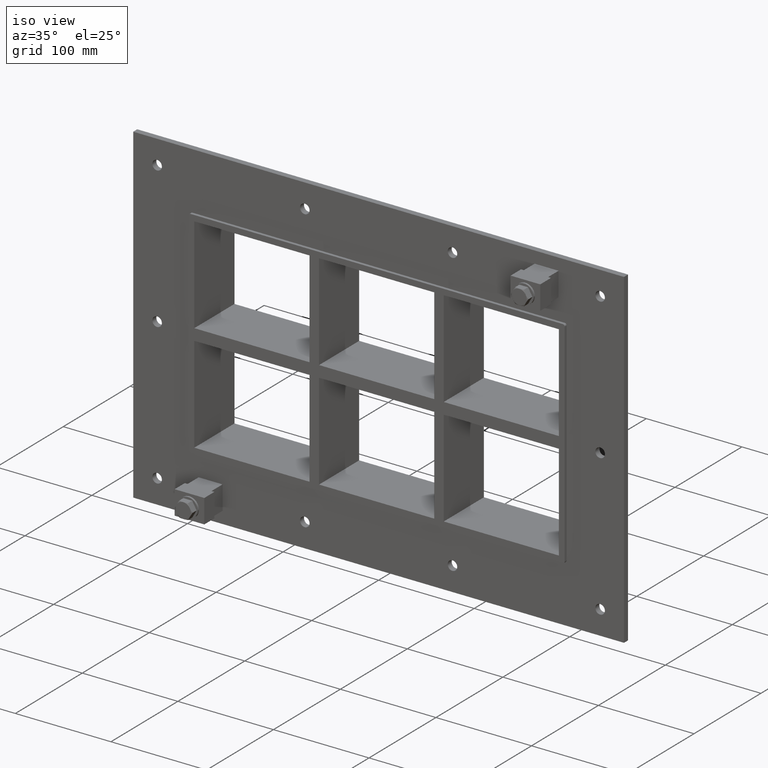
[diagram: clean part render]
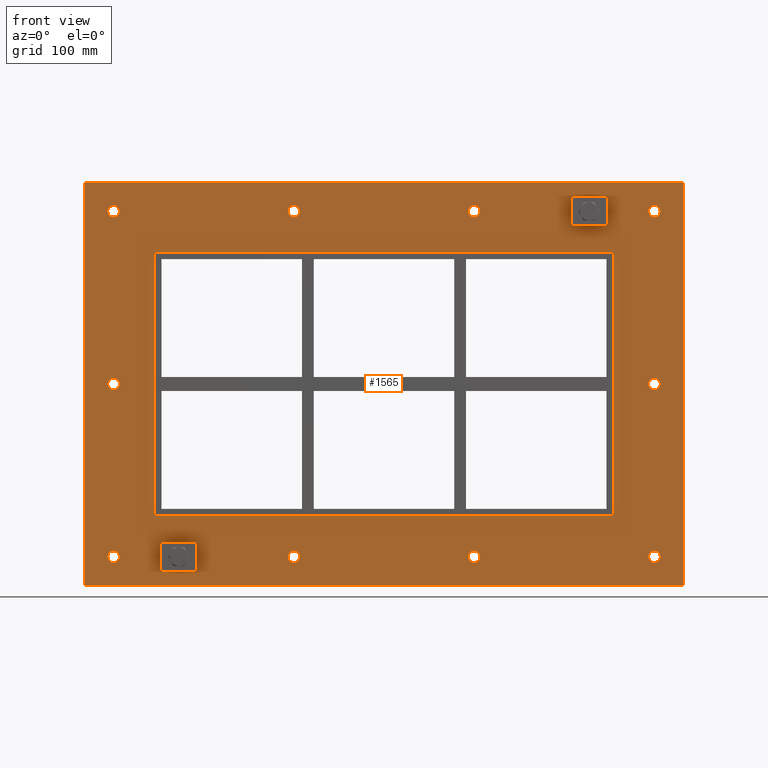
[diagram: tour spotlight — one face highlighted and labeled with its STEP entity id]
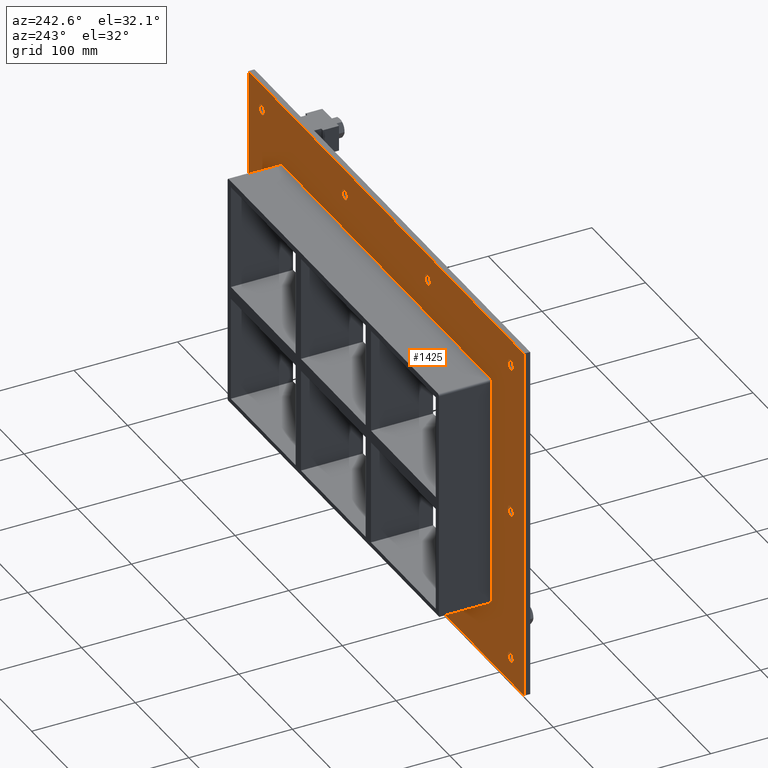
[diagram: tour spotlight — one face highlighted and labeled with its STEP entity id]
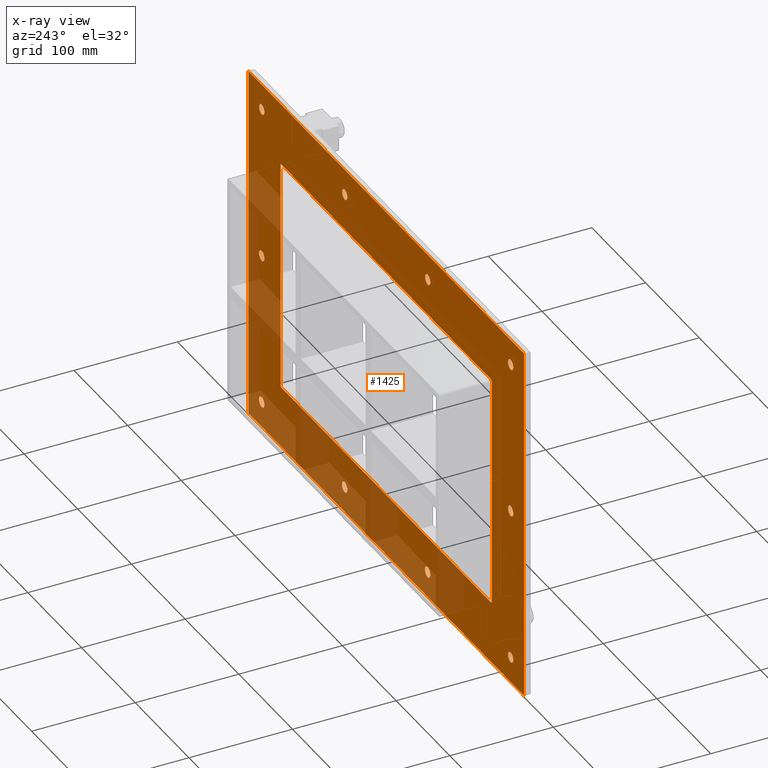
[diagram: x-ray of the same camera — body ghosted, this tour face saturated]
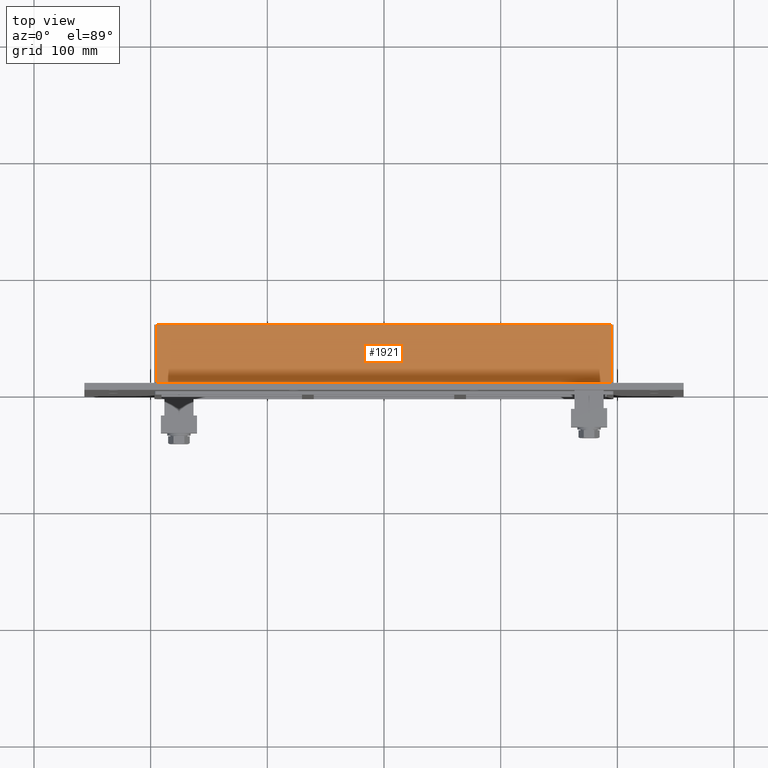
[diagram: tour spotlight — one face highlighted and labeled with its STEP entity id]
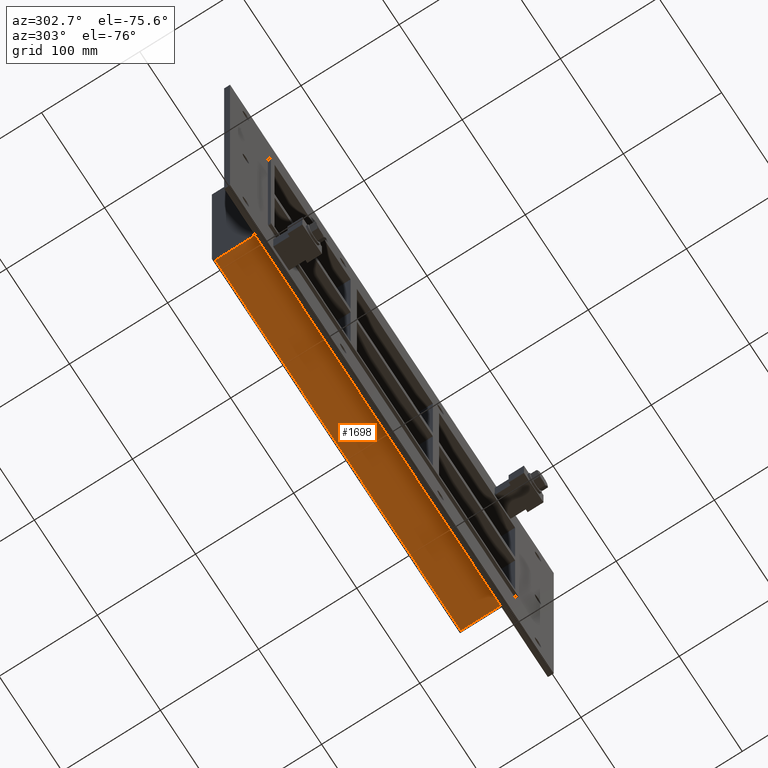
[diagram: tour spotlight — one face highlighted and labeled with its STEP entity id]
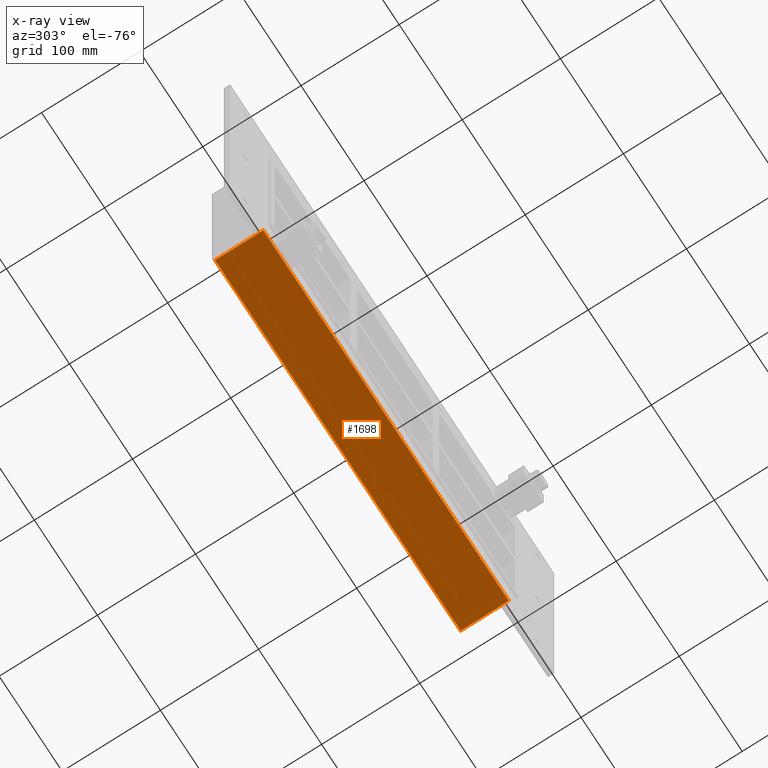
[diagram: x-ray of the same camera — body ghosted, this tour face saturated]
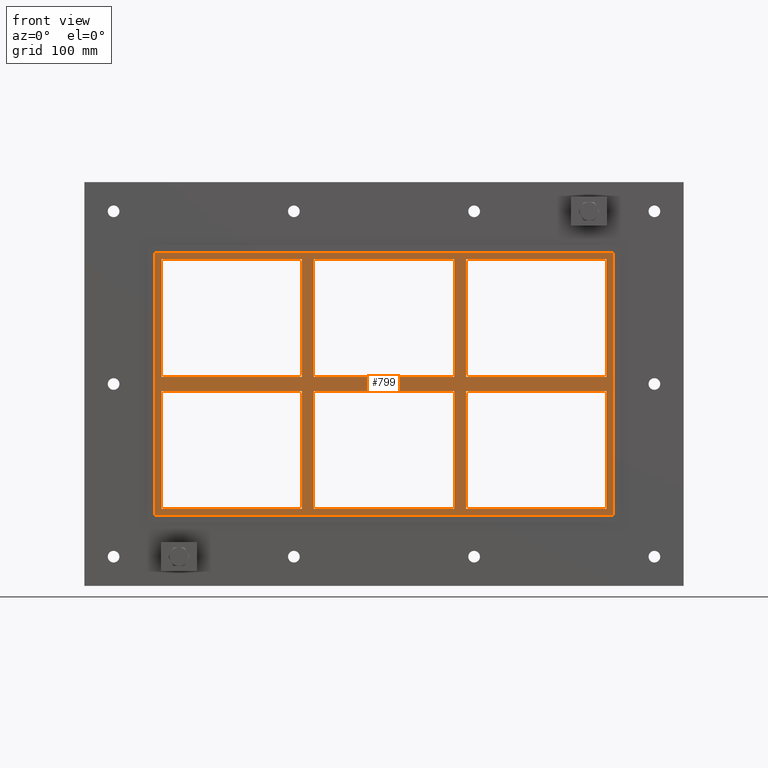
[diagram: tour spotlight — one face highlighted and labeled with its STEP entity id]
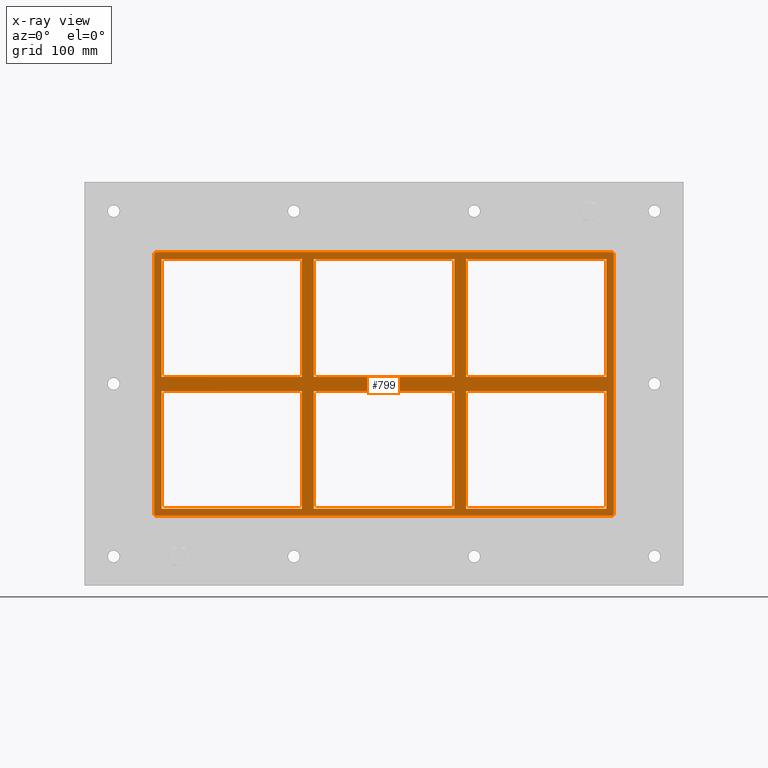
[diagram: x-ray of the same camera — body ghosted, this tour face saturated]
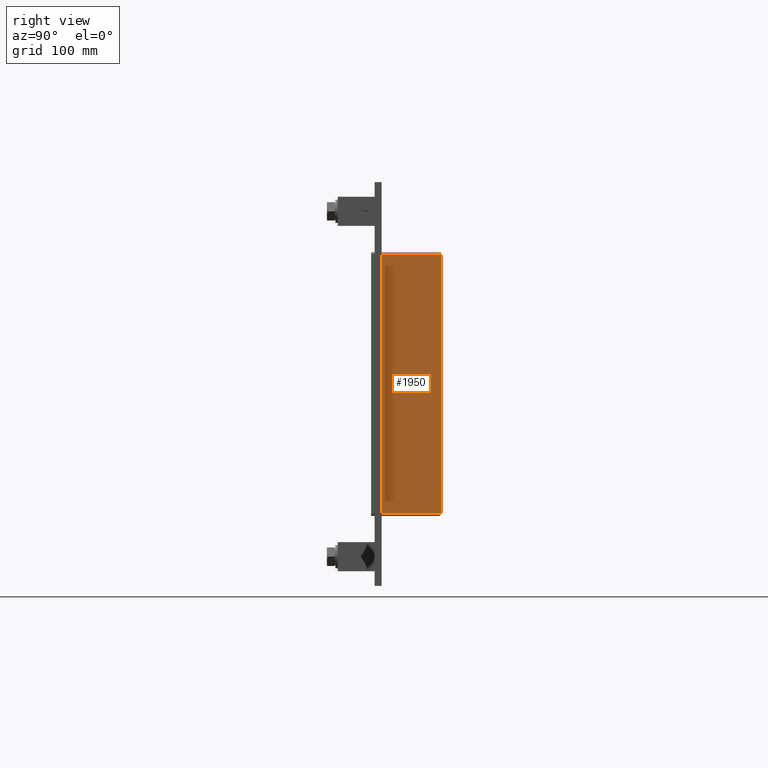
[diagram: tour spotlight — one face highlighted and labeled with its STEP entity id]
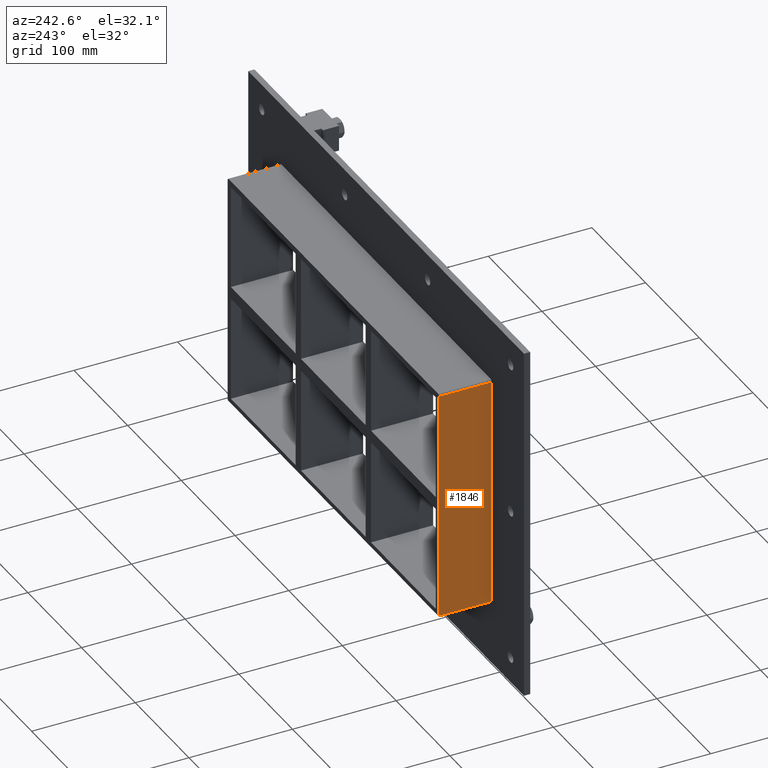
[diagram: tour spotlight — one face highlighted and labeled with its STEP entity id]
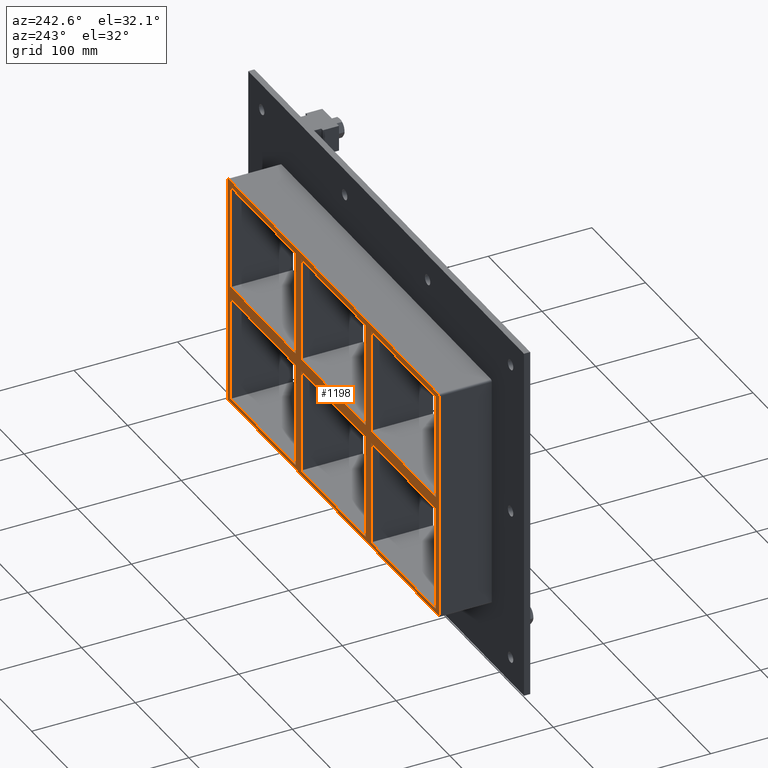
[diagram: tour spotlight — one face highlighted and labeled with its STEP entity id]
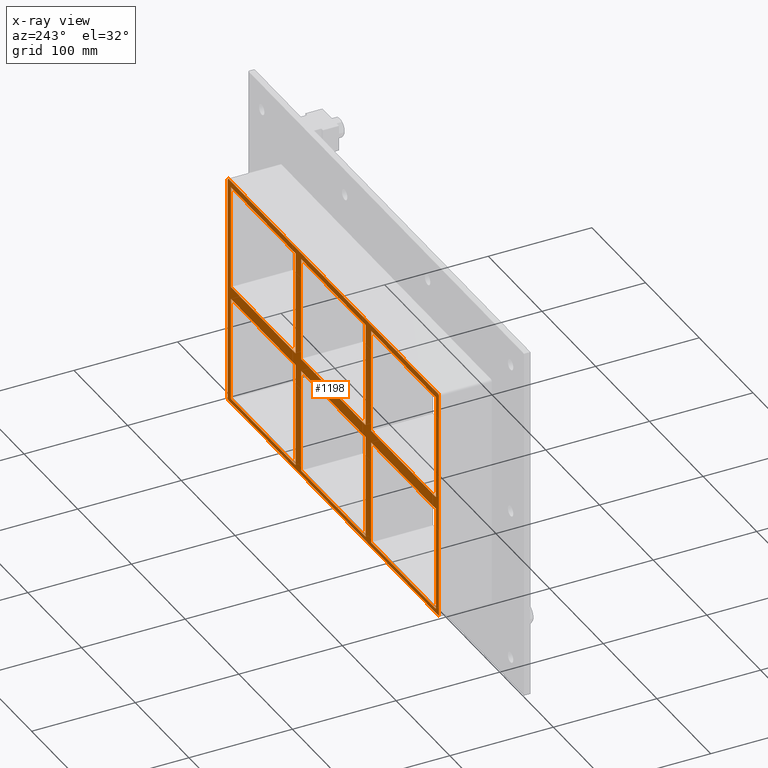
[diagram: x-ray of the same camera — body ghosted, this tour face saturated]
A machine part: a face-by-face anatomy tour. The part has 137 B-rep faces; the first image is the clean iso view, then the 8 largest visible faces are spotlighted one at a time (largest first), each with its STEP entity span.

Face 1 — front view, entity #1565. In plain terms, the highlighted planar face has unit normal (0, 1, 0).
Definition (entity closure, byte-faithful):
#84=CARTESIAN_POINT('',(-226.75000000000014,0.0,-148.00000000000006));
#85=VERTEX_POINT('',#84);
#86=CARTESIAN_POINT('',(-231.75000000000014,0.0,-148.00000000000006));
#87=DIRECTION('',(0.0,1.0,0.0));
#88=DIRECTION('',(1.0,0.0,0.0));
#89=AXIS2_PLACEMENT_3D('',#86,#87,#88);
#90=CIRCLE('',#89,5.0);
#91=EDGE_CURVE('',#85,#85,#90,.T.);
#112=CARTESIAN_POINT('',(236.74999999999986,0.0,-3.552714E-014));
#113=VERTEX_POINT('',#112);
#114=CARTESIAN_POINT('',(231.74999999999986,0.0,-3.552714E-014));
#115=DIRECTION('',(0.0,1.0,0.0));
#116=DIRECTION('',(1.0,0.0,0.0));
#117=AXIS2_PLACEMENT_3D('',#114,#115,#116);
#118=CIRCLE('',#117,5.0);
#119=EDGE_CURVE('',#113,#113,#118,.T.);
#140=CARTESIAN_POINT('',(-226.75000000000014,0.0,-3.552714E-014));
#141=VERTEX_POINT('',#140);
#142=CARTESIAN_POINT('',(-231.75000000000014,0.0,-3.552714E-014));
#143=DIRECTION('',(0.0,1.0,0.0));
#144=DIRECTION('',(1.0,0.0,0.0));
#145=AXIS2_PLACEMENT_3D('',#142,#143,#144);
#146=CIRCLE('',#145,5.0);
#147=EDGE_CURVE('',#141,#141,#146,.T.);
#168=CARTESIAN_POINT('',(-72.250000000000114,0.0,147.99999999999997));
#169=VERTEX_POINT('',#168);
#170=CARTESIAN_POINT('',(-77.250000000000114,0.0,147.99999999999997));
#171=DIRECTION('',(0.0,1.0,0.0));
#172=DIRECTION('',(1.0,0.0,0.0));
#173=AXIS2_PLACEMENT_3D('',#170,#171,#172);
#174=CIRCLE('',#173,5.0);
#175=EDGE_CURVE('',#169,#169,#174,.T.);
#196=CARTESIAN_POINT('',(-72.250000000000114,0.0,-148.00000000000006));
#197=VERTEX_POINT('',#196);
#198=CARTESIAN_POINT('',(-77.250000000000114,0.0,-148.00000000000006));
#199=DIRECTION('',(0.0,1.0,0.0));
#200=DIRECTION('',(1.0,0.0,0.0));
#201=AXIS2_PLACEMENT_3D('',#198,#199,#200);
#202=CIRCLE('',#201,5.0);
#203=EDGE_CURVE('',#197,#197,#202,.T.);
#224=CARTESIAN_POINT('',(82.249999999999872,0.0,147.99999999999997));
#225=VERTEX_POINT('',#224);
#226=CARTESIAN_POINT('',(77.249999999999872,0.0,147.99999999999997));
#227=DIRECTION('',(0.0,1.0,0.0));
#228=DIRECTION('',(1.0,0.0,0.0));
#229=AXIS2_PLACEMENT_3D('',#226,#227,#228);
#230=CIRCLE('',#229,5.0);
#231=EDGE_CURVE('',#225,#225,#230,.T.);
#252=CARTESIAN_POINT('',(82.249999999999872,0.0,-148.00000000000006));
#253=VERTEX_POINT('',#252);
#254=CARTESIAN_POINT('',(77.249999999999872,0.0,-148.00000000000006));
#255=DIRECTION('',(0.0,1.0,0.0));
#256=DIRECTION('',(1.0,0.0,0.0));
#257=AXIS2_PLACEMENT_3D('',#254,#255,#256);
#258=CIRCLE('',#257,5.0);
#259=EDGE_CURVE('',#253,#253,#258,.T.);
#280=CARTESIAN_POINT('',(236.74999999999986,0.0,-148.00000000000006));
#281=VERTEX_POINT('',#280);
#282=CARTESIAN_POINT('',(231.74999999999986,0.0,-148.00000000000006));
#283=DIRECTION('',(0.0,1.0,0.0));
#284=DIRECTION('',(1.0,0.0,0.0));
#285=AXIS2_PLACEMENT_3D('',#282,#283,#284);
#286=CIRCLE('',#285,5.0);
#287=EDGE_CURVE('',#281,#281,#286,.T.);
#308=CARTESIAN_POINT('',(-226.75000000000014,0.0,147.99999999999997));
#309=VERTEX_POINT('',#308);
#310=CARTESIAN_POINT('',(-231.75000000000014,0.0,147.99999999999997));
#311=DIRECTION('',(0.0,1.0,0.0));
#312=DIRECTION('',(1.0,0.0,0.0));
#313=AXIS2_PLACEMENT_3D('',#310,#311,#312);
#314=CIRCLE('',#313,5.0);
#315=EDGE_CURVE('',#309,#309,#314,.T.);
#336=CARTESIAN_POINT('',(236.74999999999986,0.0,147.99999999999997));
#337=VERTEX_POINT('',#336);
#338=CARTESIAN_POINT('',(231.74999999999986,0.0,147.99999999999997));
#339=DIRECTION('',(0.0,1.0,0.0));
#340=DIRECTION('',(1.0,0.0,0.0));
#341=AXIS2_PLACEMENT_3D('',#338,#339,#340);
#342=CIRCLE('',#341,5.0);
#343=EDGE_CURVE('',#337,#337,#342,.T.);
#1426=CARTESIAN_POINT('',(0.0,0.0,0.0));
#1427=DIRECTION('',(0.0,1.0,0.0));
#1428=DIRECTION('',(0.0,0.0,1.0));
#1429=AXIS2_PLACEMENT_3D('',#1426,#1427,#1428);
#1430=PLANE('',#1429);
#1431=CARTESIAN_POINT('',(-256.75,0.0,173.00000000000006));
#1432=VERTEX_POINT('',#1431);
#1433=CARTESIAN_POINT('',(256.75,0.0,173.00000000000006));
#1434=VERTEX_POINT('',#1433);
#1435=CARTESIAN_POINT('',(-256.75,0.0,173.00000000000006));
#1436=DIRECTION('',(1.0,0.0,0.0));
#1437=VECTOR('',#1436,513.5);
#1438=LINE('',#1435,#1437);
#1439=EDGE_CURVE('',#1432,#1434,#1438,.T.);
#1440=ORIENTED_EDGE('',*,*,#1439,.F.);
#1441=CARTESIAN_POINT('',(-256.75,0.0,-173.00000000000006));
#1442=VERTEX_POINT('',#1441);
#1443=CARTESIAN_POINT('',(-256.75,0.0,-173.00000000000006));
#1444=DIRECTION('',(0.0,0.0,1.0));
#1445=VECTOR('',#1444,346.00000000000011);
#1446=LINE('',#1443,#1445);
#1447=EDGE_CURVE('',#1442,#1432,#1446,.T.);
#1448=ORIENTED_EDGE('',*,*,#1447,.F.);
#1449=CARTESIAN_POINT('',(256.75,0.0,-173.00000000000006));
#1450=VERTEX_POINT('',#1449);
#1451=CARTESIAN_POINT('',(256.75,0.0,-173.00000000000006));
#1452=DIRECTION('',(-1.0,0.0,0.0));
#1453=VECTOR('',#1452,513.5);
#1454=LINE('',#1451,#1453);
#1455=EDGE_CURVE('',#1450,#1442,#1454,.T.);
#1456=ORIENTED_EDGE('',*,*,#1455,.F.);
#1457=CARTESIAN_POINT('',(256.75,0.0,173.00000000000006));
#1458=DIRECTION('',(0.0,0.0,-1.0));
#1459=VECTOR('',#1458,346.00000000000011);
#1460=LINE('',#1457,#1459);
#1461=EDGE_CURVE('',#1434,#1450,#1460,.T.);
#1462=ORIENTED_EDGE('',*,*,#1461,.F.);
#1463=EDGE_LOOP('',(#1440,#1448,#1456,#1462));
#1464=FACE_OUTER_BOUND('',#1463,.T.);
#1465=ORIENTED_EDGE('',*,*,#91,.T.);
#1466=EDGE_LOOP('',(#1465));
#1467=FACE_BOUND('',#1466,.T.);
#1468=ORIENTED_EDGE('',*,*,#119,.T.);
#1469=EDGE_LOOP('',(#1468));
#1470=FACE_BOUND('',#1469,.T.);
#1471=ORIENTED_EDGE('',*,*,#147,.T.);
#1472=EDGE_LOOP('',(#1471));
#1473=FACE_BOUND('',#1472,.T.);
#1474=ORIENTED_EDGE('',*,*,#175,.T.);
#1475=EDGE_LOOP('',(#1474));
#1476=FACE_BOUND('',#1475,.T.);
#1477=ORIENTED_EDGE('',*,*,#203,.T.);
#1478=EDGE_LOOP('',(#1477));
#1479=FACE_BOUND('',#1478,.T.);
#1480=ORIENTED_EDGE('',*,*,#231,.T.);
#1481=EDGE_LOOP('',(#1480));
#1482=FACE_BOUND('',#1481,.T.);
#1483=ORIENTED_EDGE('',*,*,#259,.T.);
#1484=EDGE_LOOP('',(#1483));
#1485=FACE_BOUND('',#1484,.T.);
#1486=ORIENTED_EDGE('',*,*,#287,.T.);
#1487=EDGE_LOOP('',(#1486));
#1488=FACE_BOUND('',#1487,.T.);
#1489=ORIENTED_EDGE('',*,*,#315,.T.);
#1490=EDGE_LOOP('',(#1489));
#1491=FACE_BOUND('',#1490,.T.);
#1492=ORIENTED_EDGE('',*,*,#343,.T.);
#1493=EDGE_LOOP('',(#1492));
#1494=FACE_BOUND('',#1493,.T.);
#1495=CARTESIAN_POINT('',(-194.75,0.0,112.99999999999997));
#1496=VERTEX_POINT('',#1495);
#1497=CARTESIAN_POINT('',(-196.75000000000006,0.0,110.99999999999997));
#1498=VERTEX_POINT('',#1497);
#1499=CARTESIAN_POINT('',(-194.75,0.0,110.99999999999997));
#1500=DIRECTION('',(0.0,-1.0,0.0));
#1501=DIRECTION('',(-0.707106781186554,0.0,0.707106781186541));
#1502=AXIS2_PLACEMENT_3D('',#1499,#1500,#1501);
#1503=CIRCLE('',#1502,2.0);
#1504=EDGE_CURVE('',#1496,#1498,#1503,.T.);
#1505=ORIENTED_EDGE('',*,*,#1504,.F.);
#1506=CARTESIAN_POINT('',(194.75,0.0,112.99999999999997));
#1507=VERTEX_POINT('',#1506);
#1508=CARTESIAN_POINT('',(194.75000000000003,0.0,112.99999999999997));
#1509=DIRECTION('',(-1.0,0.0,0.0));
#1510=VECTOR('',#1509,389.50000000000006);
#1511=LINE('',#1508,#1510);
#1512=EDGE_CURVE('',#1507,#1496,#1511,.T.);
#1513=ORIENTED_EDGE('',*,*,#1512,.F.);
#1514=CARTESIAN_POINT('',(196.75000000000006,0.0,110.99999999999997));
#1515=VERTEX_POINT('',#1514);
#1516=CARTESIAN_POINT('',(194.75,0.0,110.99999999999997));
#1517=DIRECTION('',(0.0,-1.0,0.0));
#1518=DIRECTION('',(0.707106781186554,0.0,0.707106781186541));
#1519=AXIS2_PLACEMENT_3D('',#1516,#1517,#1518);
#1520=CIRCLE('',#1519,2.0);
#1521=EDGE_CURVE('',#1515,#1507,#1520,.T.);
#1522=ORIENTED_EDGE('',*,*,#1521,.F.);
#1523=CARTESIAN_POINT('',(196.75000000000006,0.0,-111.00000000000006));
#1524=VERTEX_POINT('',#1523);
#1525=CARTESIAN_POINT('',(196.75000000000006,0.0,-111.00000000000004));
#1526=DIRECTION('',(0.0,0.0,1.0));
#1527=VECTOR('',#1526,222.0);
#1528=LINE('',#1525,#1527);
#1529=EDGE_CURVE('',#1524,#1515,#1528,.T.);
#1530=ORIENTED_EDGE('',*,*,#1529,.F.);
#1531=CARTESIAN_POINT('',(194.75,0.0,-113.00000000000004));
#1532=VERTEX_POINT('',#1531);
#1533=CARTESIAN_POINT('',(194.75,0.0,-111.00000000000006));
#1534=DIRECTION('',(0.0,-1.0,0.0));
#1535=DIRECTION('',(0.707106781186554,0.0,-0.707106781186541));
#1536=AXIS2_PLACEMENT_3D('',#1533,#1534,#1535);
#1537=CIRCLE('',#1536,2.0);
#1538=EDGE_CURVE('',#1532,#1524,#1537,.T.);
#1539=ORIENTED_EDGE('',*,*,#1538,.F.);
#1540=CARTESIAN_POINT('',(-194.75,0.0,-113.00000000000004));
#1541=VERTEX_POINT('',#1540);
#1542=CARTESIAN_POINT('',(-194.75000000000003,0.0,-113.00000000000004));
#1543=DIRECTION('',(1.0,0.0,0.0));
#1544=VECTOR('',#1543,389.50000000000006);
#1545=LINE('',#1542,#1544);
#1546=EDGE_CURVE('',#1541,#1532,#1545,.T.);
#1547=ORIENTED_EDGE('',*,*,#1546,.F.);
#1548=CARTESIAN_POINT('',(-196.75000000000006,0.0,-111.00000000000006));
#1549=VERTEX_POINT('',#1548);
#1550=CARTESIAN_POINT('',(-194.75,0.0,-111.00000000000006));
#1551=DIRECTION('',(0.0,-1.0,0.0));
#1552=DIRECTION('',(-0.707106781186554,0.0,-0.707106781186541));
#1553=AXIS2_PLACEMENT_3D('',#1550,#1551,#1552);
#1554=CIRCLE('',#1553,2.0);
#1555=EDGE_CURVE('',#1549,#1541,#1554,.T.);
#1556=ORIENTED_EDGE('',*,*,#1555,.F.);
#1557=CARTESIAN_POINT('',(-196.75000000000006,0.0,110.99999999999997));
#1558=DIRECTION('',(0.0,0.0,-1.0));
#1559=VECTOR('',#1558,222.00000000000003);
#1560=LINE('',#1557,#1559);
#1561=EDGE_CURVE('',#1498,#1549,#1560,.T.);
#1562=ORIENTED_EDGE('',*,*,#1561,.F.);
#1563=EDGE_LOOP('',(#1505,#1513,#1522,#1530,#1539,#1547,#1556,#1562));
#1564=FACE_BOUND('',#1563,.T.);
#1565=ADVANCED_FACE('',(#1464,#1467,#1470,#1473,#1476,#1479,#1482,#1485,#1488,#1491,#1494,#1564),#1430,.F.);

Face 2 — auxiliary view, entity #1425. An x-ray twin of the same camera follows (body ghosted, this face saturated) — the face is partly hidden behind the body. In plain terms, the highlighted planar face has unit normal (0, 1, 0).
Definition (entity closure, byte-faithful):
#73=CARTESIAN_POINT('',(-236.75000000000014,6.000000000000014,-148.00000000000006));
#74=VERTEX_POINT('',#73);
#75=CARTESIAN_POINT('',(-231.75000000000014,6.000000000000014,-148.00000000000006));
#76=DIRECTION('',(0.0,-1.0,0.0));
#77=DIRECTION('',(1.0,0.0,0.0));
#78=AXIS2_PLACEMENT_3D('',#75,#76,#77);
#79=CIRCLE('',#78,5.0);
#80=EDGE_CURVE('',#74,#74,#79,.T.);
#101=CARTESIAN_POINT('',(226.74999999999986,6.000000000000014,-3.552714E-014));
#102=VERTEX_POINT('',#101);
#103=CARTESIAN_POINT('',(231.74999999999986,6.000000000000014,-3.552714E-014));
#104=DIRECTION('',(0.0,-1.0,0.0));
#105=DIRECTION('',(1.0,0.0,0.0));
#106=AXIS2_PLACEMENT_3D('',#103,#104,#105);
#107=CIRCLE('',#106,5.0);
#108=EDGE_CURVE('',#102,#102,#107,.T.);
#129=CARTESIAN_POINT('',(-236.75000000000014,6.000000000000014,-3.552714E-014));
#130=VERTEX_POINT('',#129);
#131=CARTESIAN_POINT('',(-231.75000000000014,6.000000000000014,-3.552714E-014));
#132=DIRECTION('',(0.0,-1.0,0.0));
#133=DIRECTION('',(1.0,0.0,0.0));
#134=AXIS2_PLACEMENT_3D('',#131,#132,#133);
#135=CIRCLE('',#134,5.0);
#136=EDGE_CURVE('',#130,#130,#135,.T.);
#157=CARTESIAN_POINT('',(-82.250000000000114,6.000000000000014,147.99999999999997));
#158=VERTEX_POINT('',#157);
#159=CARTESIAN_POINT('',(-77.250000000000114,6.000000000000014,147.99999999999997));
#160=DIRECTION('',(0.0,-1.0,0.0));
#161=DIRECTION('',(1.0,0.0,0.0));
#162=AXIS2_PLACEMENT_3D('',#159,#160,#161);
#163=CIRCLE('',#162,5.0);
#164=EDGE_CURVE('',#158,#158,#163,.T.);
#185=CARTESIAN_POINT('',(-82.250000000000114,6.000000000000014,-148.00000000000006));
#186=VERTEX_POINT('',#185);
#187=CARTESIAN_POINT('',(-77.250000000000114,6.000000000000014,-148.00000000000006));
#188=DIRECTION('',(0.0,-1.0,0.0));
#189=DIRECTION('',(1.0,0.0,0.0));
#190=AXIS2_PLACEMENT_3D('',#187,#188,#189);
#191=CIRCLE('',#190,5.0);
#192=EDGE_CURVE('',#186,#186,#191,.T.);
#213=CARTESIAN_POINT('',(72.249999999999872,6.000000000000014,147.99999999999997));
#214=VERTEX_POINT('',#213);
#215=CARTESIAN_POINT('',(77.249999999999872,6.000000000000014,147.99999999999997));
#216=DIRECTION('',(0.0,-1.0,0.0));
#217=DIRECTION('',(1.0,0.0,0.0));
#218=AXIS2_PLACEMENT_3D('',#215,#216,#217);
#219=CIRCLE('',#218,5.0);
#220=EDGE_CURVE('',#214,#214,#219,.T.);
#241=CARTESIAN_POINT('',(72.249999999999872,6.000000000000014,-148.00000000000006));
#242=VERTEX_POINT('',#241);
#243=CARTESIAN_POINT('',(77.249999999999872,6.000000000000014,-148.00000000000006));
#244=DIRECTION('',(0.0,-1.0,0.0));
#245=DIRECTION('',(1.0,0.0,0.0));
#246=AXIS2_PLACEMENT_3D('',#243,#244,#245);
#247=CIRCLE('',#246,5.0);
#248=EDGE_CURVE('',#242,#242,#247,.T.);
#269=CARTESIAN_POINT('',(226.74999999999986,6.000000000000014,-148.00000000000006));
#270=VERTEX_POINT('',#269);
#271=CARTESIAN_POINT('',(231.74999999999986,6.000000000000014,-148.00000000000006));
#272=DIRECTION('',(0.0,-1.0,0.0));
#273=DIRECTION('',(1.0,0.0,0.0));
#274=AXIS2_PLACEMENT_3D('',#271,#272,#273);
#275=CIRCLE('',#274,5.0);
#276=EDGE_CURVE('',#270,#270,#275,.T.);
#297=CARTESIAN_POINT('',(-236.75000000000014,6.000000000000014,147.99999999999997));
#298=VERTEX_POINT('',#297);
#299=CARTESIAN_POINT('',(-231.75000000000014,6.000000000000014,147.99999999999997));
#300=DIRECTION('',(0.0,-1.0,0.0));
#301=DIRECTION('',(1.0,0.0,0.0));
#302=AXIS2_PLACEMENT_3D('',#299,#300,#301);
#303=CIRCLE('',#302,5.0);
#304=EDGE_CURVE('',#298,#298,#303,.T.);
#325=CARTESIAN_POINT('',(226.74999999999986,6.000000000000014,147.99999999999997));
#326=VERTEX_POINT('',#325);
#327=CARTESIAN_POINT('',(231.74999999999986,6.000000000000014,147.99999999999997));
#328=DIRECTION('',(0.0,-1.0,0.0));
#329=DIRECTION('',(1.0,0.0,0.0));
#330=AXIS2_PLACEMENT_3D('',#327,#328,#329);
#331=CIRCLE('',#330,5.0);
#332=EDGE_CURVE('',#326,#326,#331,.T.);
#1286=CARTESIAN_POINT('',(0.0,6.000000000000001,0.0));
#1287=DIRECTION('',(0.0,1.0,0.0));
#1288=DIRECTION('',(0.0,0.0,1.0));
#1289=AXIS2_PLACEMENT_3D('',#1286,#1287,#1288);
#1290=PLANE('',#1289);
#1291=CARTESIAN_POINT('',(-256.75,6.000000000000001,173.00000000000006));
#1292=VERTEX_POINT('',#1291);
#1293=CARTESIAN_POINT('',(256.75,6.000000000000001,173.00000000000006));
#1294=VERTEX_POINT('',#1293);
#1295=CARTESIAN_POINT('',(-256.75,6.000000000000001,173.00000000000006));
#1296=DIRECTION('',(1.0,0.0,0.0));
#1297=VECTOR('',#1296,513.5);
#1298=LINE('',#1295,#1297);
#1299=EDGE_CURVE('',#1292,#1294,#1298,.T.);
#1300=ORIENTED_EDGE('',*,*,#1299,.T.);
#1301=CARTESIAN_POINT('',(256.75,6.000000000000001,-173.00000000000006));
#1302=VERTEX_POINT('',#1301);
#1303=CARTESIAN_POINT('',(256.75,6.000000000000001,173.00000000000006));
#1304=DIRECTION('',(0.0,0.0,-1.0));
#1305=VECTOR('',#1304,346.00000000000011);
#1306=LINE('',#1303,#1305);
#1307=EDGE_CURVE('',#1294,#1302,#1306,.T.);
#1308=ORIENTED_EDGE('',*,*,#1307,.T.);
#1309=CARTESIAN_POINT('',(-256.75,6.000000000000001,-173.00000000000006));
#1310=VERTEX_POINT('',#1309);
#1311=CARTESIAN_POINT('',(256.75,6.000000000000001,-173.00000000000006));
#1312=DIRECTION('',(-1.0,0.0,0.0));
#1313=VECTOR('',#1312,513.5);
#1314=LINE('',#1311,#1313);
#1315=EDGE_CURVE('',#1302,#1310,#1314,.T.);
#1316=ORIENTED_EDGE('',*,*,#1315,.T.);
#1317=CARTESIAN_POINT('',(-256.75,6.000000000000001,-173.00000000000006));
#1318=DIRECTION('',(0.0,0.0,1.0));
#1319=VECTOR('',#1318,346.00000000000011);
#1320=LINE('',#1317,#1319);
#1321=EDGE_CURVE('',#1310,#1292,#1320,.T.);
#1322=ORIENTED_EDGE('',*,*,#1321,.T.);
#1323=EDGE_LOOP('',(#1300,#1308,#1316,#1322));
#1324=FACE_OUTER_BOUND('',#1323,.T.);
#1325=ORIENTED_EDGE('',*,*,#80,.T.);
#1326=EDGE_LOOP('',(#1325));
#1327=FACE_BOUND('',#1326,.T.);
#1328=ORIENTED_EDGE('',*,*,#108,.T.);
#1329=EDGE_LOOP('',(#1328));
#1330=FACE_BOUND('',#1329,.T.);
#1331=ORIENTED_EDGE('',*,*,#136,.T.);
#1332=EDGE_LOOP('',(#1331));
#1333=FACE_BOUND('',#1332,.T.);
#1334=ORIENTED_EDGE('',*,*,#164,.T.);
#1335=EDGE_LOOP('',(#1334));
#1336=FACE_BOUND('',#1335,.T.);
#1337=ORIENTED_EDGE('',*,*,#192,.T.);
#1338=EDGE_LOOP('',(#1337));
#1339=FACE_BOUND('',#1338,.T.);
#1340=ORIENTED_EDGE('',*,*,#220,.T.);
#1341=EDGE_LOOP('',(#1340));
#1342=FACE_BOUND('',#1341,.T.);
#1343=ORIENTED_EDGE('',*,*,#248,.T.);
#1344=EDGE_LOOP('',(#1343));
#1345=FACE_BOUND('',#1344,.T.);
#1346=ORIENTED_EDGE('',*,*,#276,.T.);
#1347=EDGE_LOOP('',(#1346));
#1348=FACE_BOUND('',#1347,.T.);
#1349=ORIENTED_EDGE('',*,*,#304,.T.);
#1350=EDGE_LOOP('',(#1349));
#1351=FACE_BOUND('',#1350,.T.);
#1352=ORIENTED_EDGE('',*,*,#332,.T.);
#1353=EDGE_LOOP('',(#1352));
#1354=FACE_BOUND('',#1353,.T.);
#1355=CARTESIAN_POINT('',(-196.75000000000006,6.000000000000001,110.99999999999997));
#1356=VERTEX_POINT('',#1355);
#1357=CARTESIAN_POINT('',(-194.75,6.000000000000001,112.99999999999997));
#1358=VERTEX_POINT('',#1357);
#1359=CARTESIAN_POINT('',(-194.75,6.000000000000001,110.99999999999997));
#1360=DIRECTION('',(0.0,1.0,0.0));
#1361=DIRECTION('',(-0.707106781186554,0.0,0.707106781186541));
#1362=AXIS2_PLACEMENT_3D('',#1359,#1360,#1361);
#1363=CIRCLE('',#1362,2.0);
#1364=EDGE_CURVE('',#1356,#1358,#1363,.T.);
#1365=ORIENTED_EDGE('',*,*,#1364,.F.);
#1366=CARTESIAN_POINT('',(-196.75000000000006,6.000000000000001,-111.00000000000006));
#1367=VERTEX_POINT('',#1366);
#1368=CARTESIAN_POINT('',(-196.75000000000006,6.000000000000001,-111.00000000000006));
#1369=DIRECTION('',(0.0,0.0,1.0));
#1370=VECTOR('',#1369,222.00000000000003);
#1371=LINE('',#1368,#1370);
#1372=EDGE_CURVE('',#1367,#1356,#1371,.T.);
#1373=ORIENTED_EDGE('',*,*,#1372,.F.);
#1374=CARTESIAN_POINT('',(-194.75,6.000000000000001,-113.00000000000004));
#1375=VERTEX_POINT('',#1374);
#1376=CARTESIAN_POINT('',(-194.75,6.000000000000001,-111.00000000000006));
#1377=DIRECTION('',(0.0,1.0,0.0));
#1378=DIRECTION('',(-0.707106781186554,0.0,-0.707106781186541));
#1379=AXIS2_PLACEMENT_3D('',#1376,#1377,#1378);
#1380=CIRCLE('',#1379,2.0);
#1381=EDGE_CURVE('',#1375,#1367,#1380,.T.);
#1382=ORIENTED_EDGE('',*,*,#1381,.F.);
#1383=CARTESIAN_POINT('',(194.75,6.000000000000001,-113.00000000000004));
#1384=VERTEX_POINT('',#1383);
#1385=CARTESIAN_POINT('',(194.75000000000003,6.000000000000001,-113.00000000000004));
#1386=DIRECTION('',(-1.0,0.0,0.0));
#1387=VECTOR('',#1386,389.50000000000006);
#1388=LINE('',#1385,#1387);
#1389=EDGE_CURVE('',#1384,#1375,#1388,.T.);
#1390=ORIENTED_EDGE('',*,*,#1389,.F.);
#1391=CARTESIAN_POINT('',(196.75000000000006,6.000000000000001,-111.00000000000006));
#1392=VERTEX_POINT('',#1391);
#1393=CARTESIAN_POINT('',(194.75,6.000000000000001,-111.00000000000006));
#1394=DIRECTION('',(0.0,1.0,0.0));
#1395=DIRECTION('',(0.707106781186554,0.0,-0.707106781186541));
#1396=AXIS2_PLACEMENT_3D('',#1393,#1394,#1395);
#1397=CIRCLE('',#1396,2.0);
#1398=EDGE_CURVE('',#1392,#1384,#1397,.T.);
#1399=ORIENTED_EDGE('',*,*,#1398,.F.);
#1400=CARTESIAN_POINT('',(196.75000000000006,6.000000000000001,110.99999999999997));
#1401=VERTEX_POINT('',#1400);
#1402=CARTESIAN_POINT('',(196.75000000000006,6.000000000000001,110.99999999999997));
#1403=DIRECTION('',(0.0,0.0,-1.0));
#1404=VECTOR('',#1403,222.0);
#1405=LINE('',#1402,#1404);
#1406=EDGE_CURVE('',#1401,#1392,#1405,.T.);
#1407=ORIENTED_EDGE('',*,*,#1406,.F.);
#1408=CARTESIAN_POINT('',(194.75,6.000000000000001,112.99999999999997));
#1409=VERTEX_POINT('',#1408);
#1410=CARTESIAN_POINT('',(194.75,6.000000000000001,110.99999999999997));
#1411=DIRECTION('',(0.0,1.0,0.0));
#1412=DIRECTION('',(0.707106781186554,0.0,0.707106781186541));
#1413=AXIS2_PLACEMENT_3D('',#1410,#1411,#1412);
#1414=CIRCLE('',#1413,2.0);
#1415=EDGE_CURVE('',#1409,#1401,#1414,.T.);
#1416=ORIENTED_EDGE('',*,*,#1415,.F.);
#1417=CARTESIAN_POINT('',(-194.75000000000003,6.000000000000001,112.99999999999997));
#1418=DIRECTION('',(1.0,0.0,0.0));
#1419=VECTOR('',#1418,389.50000000000006);
#1420=LINE('',#1417,#1419);
#1421=EDGE_CURVE('',#1358,#1409,#1420,.T.);
#1422=ORIENTED_EDGE('',*,*,#1421,.F.);
#1423=EDGE_LOOP('',(#1365,#1373,#1382,#1390,#1399,#1407,#1416,#1422));
#1424=FACE_BOUND('',#1423,.T.);
#1425=ADVANCED_FACE('',(#1324,#1327,#1330,#1333,#1336,#1339,#1342,#1345,#1348,#1351,#1354,#1424),#1290,.T.);

Face 3 — top view, entity #1921. In plain terms, the highlighted planar face has unit normal (0, 0, 1).
Definition (entity closure, byte-faithful):
#1087=CARTESIAN_POINT('',(-194.75,57.0,112.99999999999997));
#1088=VERTEX_POINT('',#1087);
#1096=CARTESIAN_POINT('',(194.75,57.0,112.99999999999997));
#1097=VERTEX_POINT('',#1096);
#1098=CARTESIAN_POINT('',(-194.75000000000003,57.0,112.99999999999997));
#1099=DIRECTION('',(1.0,0.0,0.0));
#1100=VECTOR('',#1099,389.5);
#1101=LINE('',#1098,#1100);
#1102=EDGE_CURVE('',#1088,#1097,#1101,.T.);
#1357=CARTESIAN_POINT('',(-194.75,6.000000000000001,112.99999999999997));
#1358=VERTEX_POINT('',#1357);
#1408=CARTESIAN_POINT('',(194.75,6.000000000000001,112.99999999999997));
#1409=VERTEX_POINT('',#1408);
#1417=CARTESIAN_POINT('',(-194.75000000000003,6.000000000000001,112.99999999999997));
#1418=DIRECTION('',(1.0,0.0,0.0));
#1419=VECTOR('',#1418,389.50000000000006);
#1420=LINE('',#1417,#1419);
#1421=EDGE_CURVE('',#1358,#1409,#1420,.T.);
#1894=CARTESIAN_POINT('',(-194.75,6.000000000000001,112.99999999999997));
#1895=DIRECTION('',(0.0,1.0,0.0));
#1896=VECTOR('',#1895,51.0);
#1897=LINE('',#1894,#1896);
#1898=EDGE_CURVE('',#1358,#1088,#1897,.T.);
#1905=CARTESIAN_POINT('',(-196.75000000000006,0.0,112.99999999999997));
#1906=DIRECTION('',(0.0,0.0,1.0));
#1907=DIRECTION('',(1.0,0.0,0.0));
#1908=AXIS2_PLACEMENT_3D('',#1905,#1906,#1907);
#1909=PLANE('',#1908);
#1910=ORIENTED_EDGE('',*,*,#1421,.T.);
#1911=CARTESIAN_POINT('',(194.75,57.0,112.99999999999997));
#1912=DIRECTION('',(0.0,-1.0,0.0));
#1913=VECTOR('',#1912,51.0);
#1914=LINE('',#1911,#1913);
#1915=EDGE_CURVE('',#1097,#1409,#1914,.T.);
#1916=ORIENTED_EDGE('',*,*,#1915,.F.);
#1917=ORIENTED_EDGE('',*,*,#1102,.F.);
#1918=ORIENTED_EDGE('',*,*,#1898,.F.);
#1919=EDGE_LOOP('',(#1910,#1916,#1917,#1918));
#1920=FACE_OUTER_BOUND('',#1919,.T.);
#1921=ADVANCED_FACE('',(#1920),#1909,.T.);

Face 4 — auxiliary view, entity #1698. An x-ray twin of the same camera follows (body ghosted, this face saturated) — the face is partly hidden behind the body. In plain terms, the highlighted planar face has unit normal (0, 0, -1).
Definition (entity closure, byte-faithful):
#1374=CARTESIAN_POINT('',(-194.75,6.000000000000001,-113.00000000000004));
#1375=VERTEX_POINT('',#1374);
#1383=CARTESIAN_POINT('',(194.75,6.000000000000001,-113.00000000000004));
#1384=VERTEX_POINT('',#1383);
#1385=CARTESIAN_POINT('',(194.75000000000003,6.000000000000001,-113.00000000000004));
#1386=DIRECTION('',(-1.0,0.0,0.0));
#1387=VECTOR('',#1386,389.50000000000006);
#1388=LINE('',#1385,#1387);
#1389=EDGE_CURVE('',#1384,#1375,#1388,.T.);
#1668=CARTESIAN_POINT('',(196.75000000000006,0.0,-113.00000000000004));
#1669=DIRECTION('',(0.0,0.0,-1.0));
#1670=DIRECTION('',(-1.0,0.0,0.0));
#1671=AXIS2_PLACEMENT_3D('',#1668,#1669,#1670);
#1672=PLANE('',#1671);
#1673=ORIENTED_EDGE('',*,*,#1389,.T.);
#1674=CARTESIAN_POINT('',(-194.75,55.0,-113.00000000000004));
#1675=VERTEX_POINT('',#1674);
#1676=CARTESIAN_POINT('',(-194.75,55.0,-113.00000000000004));
#1677=DIRECTION('',(0.0,-1.0,0.0));
#1678=VECTOR('',#1677,49.0);
#1679=LINE('',#1676,#1678);
#1680=EDGE_CURVE('',#1675,#1375,#1679,.T.);
#1681=ORIENTED_EDGE('',*,*,#1680,.F.);
#1682=CARTESIAN_POINT('',(194.75,55.0,-113.00000000000004));
#1683=VERTEX_POINT('',#1682);
#1684=CARTESIAN_POINT('',(194.75000000000003,55.0,-113.00000000000004));
#1685=DIRECTION('',(-1.0,0.0,0.0));
#1686=VECTOR('',#1685,389.50000000000006);
#1687=LINE('',#1684,#1686);
#1688=EDGE_CURVE('',#1683,#1675,#1687,.T.);
#1689=ORIENTED_EDGE('',*,*,#1688,.F.);
#1690=CARTESIAN_POINT('',(194.75,6.000000000000001,-113.00000000000004));
#1691=DIRECTION('',(0.0,1.0,0.0));
#1692=VECTOR('',#1691,49.0);
#1693=LINE('',#1690,#1692);
#1694=EDGE_CURVE('',#1384,#1683,#1693,.T.);
#1695=ORIENTED_EDGE('',*,*,#1694,.F.);
#1696=EDGE_LOOP('',(#1673,#1681,#1689,#1695));
#1697=FACE_OUTER_BOUND('',#1696,.T.);
#1698=ADVANCED_FACE('',(#1697),#1672,.T.);

Face 5 — front view, entity #799. An x-ray twin of the same camera follows (body ghosted, this face saturated) — the face is partly hidden behind the body. In plain terms, the highlighted planar face has unit normal (0, 1, 0).
Definition (entity closure, byte-faithful):
#353=CARTESIAN_POINT('',(60.249999999999645,-3.0,6.000000000000227));
#354=VERTEX_POINT('',#353);
#363=CARTESIAN_POINT('',(60.249999999999631,-3.0,107.00000000000003));
#364=VERTEX_POINT('',#363);
#365=CARTESIAN_POINT('',(60.249999999999645,-3.0,6.000000000000227));
#366=DIRECTION('',(0.0,0.0,1.0));
#367=VECTOR('',#366,100.9999999999998);
#368=LINE('',#365,#367);
#369=EDGE_CURVE('',#354,#364,#368,.T.);
#395=CARTESIAN_POINT('',(60.249999999999645,-3.0,-6.000000000011134));
#396=VERTEX_POINT('',#395);
#411=CARTESIAN_POINT('',(60.249999999999666,-3.0,-107.0));
#412=VERTEX_POINT('',#411);
#419=CARTESIAN_POINT('',(60.249999999999666,-3.0,-107.0));
#420=DIRECTION('',(0.0,0.0,1.0));
#421=VECTOR('',#420,100.99999999998886);
#422=LINE('',#419,#421);
#423=EDGE_CURVE('',#412,#396,#422,.T.);
#435=CARTESIAN_POINT('',(70.250000000003638,-3.0,6.000000000000227));
#436=VERTEX_POINT('',#435);
#451=CARTESIAN_POINT('',(70.250000000003638,-3.0,107.00000000000003));
#452=VERTEX_POINT('',#451);
#459=CARTESIAN_POINT('',(70.250000000003638,-3.0,107.00000000000003));
#460=DIRECTION('',(0.0,0.0,-1.0));
#461=VECTOR('',#460,100.9999999999998);
#462=LINE('',#459,#461);
#463=EDGE_CURVE('',#452,#436,#462,.T.);
#473=CARTESIAN_POINT('',(70.250000000003638,-3.0,-6.000000000011116));
#474=VERTEX_POINT('',#473);
#483=CARTESIAN_POINT('',(70.250000000003638,-3.0,-106.9999999999817));
#484=VERTEX_POINT('',#483);
#485=CARTESIAN_POINT('',(70.250000000003638,-3.0,-6.000000000011113));
#486=DIRECTION('',(0.0,0.0,-1.0));
#487=VECTOR('',#486,100.99999999997058);
#488=LINE('',#485,#487);
#489=EDGE_CURVE('',#474,#484,#488,.T.);
#522=CARTESIAN_POINT('',(-60.249999999996362,-3.0,-106.9999999999817));
#523=VERTEX_POINT('',#522);
#530=CARTESIAN_POINT('',(60.249999999999666,-3.0,-107.00000000000003));
#531=DIRECTION('',(-1.0,0.0,0.0));
#532=VECTOR('',#531,120.49999999999602);
#533=LINE('',#530,#532);
#534=EDGE_CURVE('',#412,#523,#533,.T.);
#545=CARTESIAN_POINT('',(190.75000000000003,-3.0,-107.0));
#546=VERTEX_POINT('',#545);
#547=CARTESIAN_POINT('',(190.75000000000003,-3.0,-107.00000000000003));
#548=DIRECTION('',(-1.0,0.0,0.0));
#549=VECTOR('',#548,120.49999999999639);
#550=LINE('',#547,#549);
#551=EDGE_CURVE('',#546,#484,#550,.T.);
#570=CARTESIAN_POINT('',(0.0,-3.0,-3.440885E-014));
#571=DIRECTION('',(0.0,1.0,0.0));
#572=DIRECTION('',(0.0,0.0,1.0));
#573=AXIS2_PLACEMENT_3D('',#570,#571,#572);
#574=PLANE('',#573);
#575=CARTESIAN_POINT('',(-194.75,-3.0,-113.00000000000004));
#576=VERTEX_POINT('',#575);
#577=CARTESIAN_POINT('',(-196.75000000000006,-3.0,-111.00000000000006));
#578=VERTEX_POINT('',#577);
#579=CARTESIAN_POINT('',(-194.75,-3.0,-111.00000000000006));
#580=DIRECTION('',(0.0,1.0,0.0));
#581=DIRECTION('',(-0.707106781186554,0.0,-0.707106781186541));
#582=AXIS2_PLACEMENT_3D('',#579,#580,#581);
#583=CIRCLE('',#582,2.0);
#584=EDGE_CURVE('',#576,#578,#583,.T.);
#585=ORIENTED_EDGE('',*,*,#584,.F.);
#586=CARTESIAN_POINT('',(194.75,-3.0,-113.00000000000004));
#587=VERTEX_POINT('',#586);
#588=CARTESIAN_POINT('',(-194.75,-3.0,-113.00000000000004));
#589=DIRECTION('',(1.0,0.0,0.0));
#590=VECTOR('',#589,389.5);
#591=LINE('',#588,#590);
#592=EDGE_CURVE('',#576,#587,#591,.T.);
#593=ORIENTED_EDGE('',*,*,#592,.T.);
#594=CARTESIAN_POINT('',(196.75000000000006,-3.0,-111.00000000000006));
#595=VERTEX_POINT('',#594);
#596=CARTESIAN_POINT('',(194.75,-3.0,-111.00000000000006));
#597=DIRECTION('',(0.0,1.0,0.0));
#598=DIRECTION('',(0.707106781186554,0.0,-0.707106781186541));
#599=AXIS2_PLACEMENT_3D('',#596,#597,#598);
#600=CIRCLE('',#599,2.0);
#601=EDGE_CURVE('',#595,#587,#600,.T.);
#602=ORIENTED_EDGE('',*,*,#601,.F.);
#603=CARTESIAN_POINT('',(196.75000000000006,-3.0,110.99999999999997));
#604=VERTEX_POINT('',#603);
#605=CARTESIAN_POINT('',(196.75000000000006,-3.0,-111.00000000000006));
#606=DIRECTION('',(0.0,0.0,1.0));
#607=VECTOR('',#606,222.00000000000003);
#608=LINE('',#605,#607);
#609=EDGE_CURVE('',#595,#604,#608,.T.);
#610=ORIENTED_EDGE('',*,*,#609,.T.);
#611=CARTESIAN_POINT('',(194.75,-3.0,112.99999999999997));
#612=VERTEX_POINT('',#611);
#613=CARTESIAN_POINT('',(194.75,-3.0,110.99999999999997));
#614=DIRECTION('',(0.0,1.0,0.0));
#615=DIRECTION('',(0.707106781186554,0.0,0.707106781186541));
#616=AXIS2_PLACEMENT_3D('',#613,#614,#615);
#617=CIRCLE('',#616,2.0);
#618=EDGE_CURVE('',#612,#604,#617,.T.);
#619=ORIENTED_EDGE('',*,*,#618,.F.);
#620=CARTESIAN_POINT('',(-194.75,-3.0,112.99999999999997));
#621=VERTEX_POINT('',#620);
#622=CARTESIAN_POINT('',(194.75,-3.0,112.99999999999997));
#623=DIRECTION('',(-1.0,0.0,0.0));
#624=VECTOR('',#623,389.5);
#625=LINE('',#622,#624);
#626=EDGE_CURVE('',#612,#621,#625,.T.);
#627=ORIENTED_EDGE('',*,*,#626,.T.);
#628=CARTESIAN_POINT('',(-196.75000000000006,-3.0,110.99999999999997));
#629=VERTEX_POINT('',#628);
#630=CARTESIAN_POINT('',(-194.75,-3.0,110.99999999999997));
#631=DIRECTION('',(0.0,1.0,0.0));
#632=DIRECTION('',(-0.707106781186554,0.0,0.707106781186541));
#633=AXIS2_PLACEMENT_3D('',#630,#631,#632);
#634=CIRCLE('',#633,2.0);
#635=EDGE_CURVE('',#629,#621,#634,.T.);
#636=ORIENTED_EDGE('',*,*,#635,.F.);
#637=CARTESIAN_POINT('',(-196.75000000000006,-3.0,110.99999999999999));
#638=DIRECTION('',(0.0,0.0,-1.0));
#639=VECTOR('',#638,222.00000000000006);
#640=LINE('',#637,#639);
#641=EDGE_CURVE('',#629,#578,#640,.T.);
#642=ORIENTED_EDGE('',*,*,#641,.T.);
#643=EDGE_LOOP('',(#585,#593,#602,#610,#619,#627,#636,#642));
#644=FACE_OUTER_BOUND('',#643,.T.);
#645=ORIENTED_EDGE('',*,*,#534,.T.);
#646=CARTESIAN_POINT('',(-60.249999999996362,-3.0,-6.00000000001136));
#647=VERTEX_POINT('',#646);
#648=CARTESIAN_POINT('',(-60.249999999996362,-3.0,-6.000000000011369));
#649=DIRECTION('',(0.0,0.0,-1.0));
#650=VECTOR('',#649,100.99999999997033);
#651=LINE('',#648,#650);
#652=EDGE_CURVE('',#647,#523,#651,.T.);
#653=ORIENTED_EDGE('',*,*,#652,.F.);
#654=CARTESIAN_POINT('',(60.249999999999659,-3.0,-6.00000000001114));
#655=DIRECTION('',(-1.0,0.0,0.0));
#656=VECTOR('',#655,120.49999999999602);
#657=LINE('',#654,#656);
#658=EDGE_CURVE('',#396,#647,#657,.T.);
#659=ORIENTED_EDGE('',*,*,#658,.F.);
#660=ORIENTED_EDGE('',*,*,#423,.F.);
#661=EDGE_LOOP('',(#645,#653,#659,#660));
#662=FACE_BOUND('',#661,.T.);
#663=CARTESIAN_POINT('',(-60.249999999996362,-3.0,6.000000000000227));
#664=VERTEX_POINT('',#663);
#665=CARTESIAN_POINT('',(-60.249999999996362,-3.0,6.000000000000227));
#666=DIRECTION('',(1.0,0.0,0.0));
#667=VECTOR('',#666,120.49999999999599);
#668=LINE('',#665,#667);
#669=EDGE_CURVE('',#664,#354,#668,.T.);
#670=ORIENTED_EDGE('',*,*,#669,.F.);
#671=CARTESIAN_POINT('',(-60.249999999996362,-3.0,107.00000000000003));
#672=VERTEX_POINT('',#671);
#673=CARTESIAN_POINT('',(-60.249999999996362,-3.0,107.00000000000003));
#674=DIRECTION('',(0.0,0.0,-1.0));
#675=VECTOR('',#674,100.9999999999998);
#676=LINE('',#673,#675);
#677=EDGE_CURVE('',#672,#664,#676,.T.);
#678=ORIENTED_EDGE('',*,*,#677,.F.);
#679=CARTESIAN_POINT('',(-60.249999999996362,-3.0,107.00000000000003));
#680=DIRECTION('',(1.0,0.0,0.0));
#681=VECTOR('',#680,120.49999999999601);
#682=LINE('',#679,#681);
#683=EDGE_CURVE('',#672,#364,#682,.T.);
#684=ORIENTED_EDGE('',*,*,#683,.T.);
#685=ORIENTED_EDGE('',*,*,#369,.F.);
#686=EDGE_LOOP('',(#670,#678,#684,#685));
#687=FACE_BOUND('',#686,.T.);
#688=ORIENTED_EDGE('',*,*,#463,.F.);
#689=CARTESIAN_POINT('',(190.75000000000003,-3.0,107.00000000000003));
#690=VERTEX_POINT('',#689);
#691=CARTESIAN_POINT('',(70.250000000003652,-3.0,107.00000000000003));
#692=DIRECTION('',(1.0,0.0,0.0));
#693=VECTOR('',#692,120.4999999999964);
#694=LINE('',#691,#693);
#695=EDGE_CURVE('',#452,#690,#694,.T.);
#696=ORIENTED_EDGE('',*,*,#695,.T.);
#697=CARTESIAN_POINT('',(190.7499999999996,-3.0,6.000000000000227));
#698=VERTEX_POINT('',#697);
#699=CARTESIAN_POINT('',(190.75000000000003,-3.0,107.00000000000003));
#700=DIRECTION('',(0.0,0.0,-1.0));
#701=VECTOR('',#700,100.9999999999998);
#702=LINE('',#699,#701);
#703=EDGE_CURVE('',#690,#698,#702,.T.);
#704=ORIENTED_EDGE('',*,*,#703,.T.);
#705=CARTESIAN_POINT('',(70.250000000003638,-3.0,6.000000000000227));
#706=DIRECTION('',(1.0,0.0,0.0));
#707=VECTOR('',#706,120.49999999999596);
#708=LINE('',#705,#707);
#709=EDGE_CURVE('',#436,#698,#708,.T.);
#710=ORIENTED_EDGE('',*,*,#709,.F.);
#711=EDGE_LOOP('',(#688,#696,#704,#710));
#712=FACE_BOUND('',#711,.T.);
#713=ORIENTED_EDGE('',*,*,#489,.F.);
#714=CARTESIAN_POINT('',(190.75000000000728,-3.0,-6.000000000010903));
#715=VERTEX_POINT('',#714);
#716=CARTESIAN_POINT('',(190.75000000000728,-3.0,-6.000000000010903));
#717=DIRECTION('',(-1.0,0.0,0.0));
#718=VECTOR('',#717,120.50000000000364);
#719=LINE('',#716,#718);
#720=EDGE_CURVE('',#715,#474,#719,.T.);
#721=ORIENTED_EDGE('',*,*,#720,.F.);
#722=CARTESIAN_POINT('',(190.75000000000003,-3.0,-6.0000000000109));
#723=DIRECTION('',(0.0,0.0,-1.0));
#724=VECTOR('',#723,100.99999999998907);
#725=LINE('',#722,#724);
#726=EDGE_CURVE('',#715,#546,#725,.T.);
#727=ORIENTED_EDGE('',*,*,#726,.T.);
#728=ORIENTED_EDGE('',*,*,#551,.T.);
#729=EDGE_LOOP('',(#713,#721,#727,#728));
#730=FACE_BOUND('',#729,.T.);
#731=CARTESIAN_POINT('',(-70.250000000000341,-3.0,-6.000000000011378));
#732=VERTEX_POINT('',#731);
#733=CARTESIAN_POINT('',(-190.74999999999875,-3.0,-6.000000000011596));
#734=VERTEX_POINT('',#733);
#735=CARTESIAN_POINT('',(-70.250000000000341,-3.0,-6.000000000011378));
#736=DIRECTION('',(-1.0,0.0,0.0));
#737=VECTOR('',#736,120.49999999999841);
#738=LINE('',#735,#737);
#739=EDGE_CURVE('',#732,#734,#738,.T.);
#740=ORIENTED_EDGE('',*,*,#739,.F.);
#741=CARTESIAN_POINT('',(-70.250000000000341,-3.0,-107.0));
#742=VERTEX_POINT('',#741);
#743=CARTESIAN_POINT('',(-70.250000000000341,-3.0,-107.0));
#744=DIRECTION('',(0.0,0.0,1.0));
#745=VECTOR('',#744,100.9999999999886);
#746=LINE('',#743,#745);
#747=EDGE_CURVE('',#742,#732,#746,.T.);
#748=ORIENTED_EDGE('',*,*,#747,.F.);
#749=CARTESIAN_POINT('',(-190.75000000000003,-3.0,-107.0));
#750=VERTEX_POINT('',#749);
#751=CARTESIAN_POINT('',(-70.250000000000327,-3.0,-107.00000000000003));
#752=DIRECTION('',(-1.0,0.0,0.0));
#753=VECTOR('',#752,120.49999999999973);
#754=LINE('',#751,#753);
#755=EDGE_CURVE('',#742,#750,#754,.T.);
#756=ORIENTED_EDGE('',*,*,#755,.T.);
#757=CARTESIAN_POINT('',(-190.75000000000003,-3.0,-107.0));
#758=DIRECTION('',(0.0,0.0,1.0));
#759=VECTOR('',#758,100.9999999999884);
#760=LINE('',#757,#759);
#761=EDGE_CURVE('',#750,#734,#760,.T.);
#762=ORIENTED_EDGE('',*,*,#761,.T.);
#763=EDGE_LOOP('',(#740,#748,#756,#762));
#764=FACE_BOUND('',#763,.T.);
#765=CARTESIAN_POINT('',(-190.74999999999875,-3.0,6.000000000000227));
#766=VERTEX_POINT('',#765);
#767=CARTESIAN_POINT('',(-190.75000000000003,-3.0,107.00000000000003));
#768=VERTEX_POINT('',#767);
#769=CARTESIAN_POINT('',(-190.75000000000003,-3.0,6.000000000000227));
#770=DIRECTION('',(0.0,0.0,1.0));
#771=VECTOR('',#770,100.99999999999982);
#772=LINE('',#769,#771);
#773=EDGE_CURVE('',#766,#768,#772,.T.);
#774=ORIENTED_EDGE('',*,*,#773,.T.);
#775=CARTESIAN_POINT('',(-70.250000000000369,-3.0,107.00000000000003));
#776=VERTEX_POINT('',#775);
#777=CARTESIAN_POINT('',(-190.75000000000003,-3.0,107.00000000000003));
#778=DIRECTION('',(1.0,0.0,0.0));
#779=VECTOR('',#778,120.49999999999966);
#780=LINE('',#777,#779);
#781=EDGE_CURVE('',#768,#776,#780,.T.);
#782=ORIENTED_EDGE('',*,*,#781,.T.);
#783=CARTESIAN_POINT('',(-70.250000000000355,-3.0,6.000000000000227));
#784=VERTEX_POINT('',#783);
#785=CARTESIAN_POINT('',(-70.250000000000355,-3.0,6.000000000000227));
#786=DIRECTION('',(0.0,0.0,1.0));
#787=VECTOR('',#786,100.9999999999998);
#788=LINE('',#785,#787);
#789=EDGE_CURVE('',#784,#776,#788,.T.);
#790=ORIENTED_EDGE('',*,*,#789,.F.);
#791=CARTESIAN_POINT('',(-190.74999999999875,-3.0,6.000000000000227));
#792=DIRECTION('',(1.0,0.0,0.0));
#793=VECTOR('',#792,120.49999999999839);
#794=LINE('',#791,#793);
#795=EDGE_CURVE('',#766,#784,#794,.T.);
#796=ORIENTED_EDGE('',*,*,#795,.F.);
#797=EDGE_LOOP('',(#774,#782,#790,#796));
#798=FACE_BOUND('',#797,.T.);
#799=ADVANCED_FACE('',(#644,#662,#687,#712,#730,#764,#798),#574,.F.);

Face 6 — right view, entity #1950. In plain terms, the highlighted planar face has unit normal (1, 0, 0).
Definition (entity closure, byte-faithful):
#1071=CARTESIAN_POINT('',(196.75000000000006,57.0,-111.00000000000006));
#1072=VERTEX_POINT('',#1071);
#1104=CARTESIAN_POINT('',(196.75000000000006,57.0,110.99999999999997));
#1105=VERTEX_POINT('',#1104);
#1113=CARTESIAN_POINT('',(196.75000000000006,57.0,110.99999999999997));
#1114=DIRECTION('',(0.0,0.0,-1.0));
#1115=VECTOR('',#1114,222.00000000000003);
#1116=LINE('',#1113,#1115);
#1117=EDGE_CURVE('',#1105,#1072,#1116,.T.);
#1391=CARTESIAN_POINT('',(196.75000000000006,6.000000000000001,-111.00000000000006));
#1392=VERTEX_POINT('',#1391);
#1400=CARTESIAN_POINT('',(196.75000000000006,6.000000000000001,110.99999999999997));
#1401=VERTEX_POINT('',#1400);
#1402=CARTESIAN_POINT('',(196.75000000000006,6.000000000000001,110.99999999999997));
#1403=DIRECTION('',(0.0,0.0,-1.0));
#1404=VECTOR('',#1403,222.0);
#1405=LINE('',#1402,#1404);
#1406=EDGE_CURVE('',#1401,#1392,#1405,.T.);
#1730=CARTESIAN_POINT('',(196.75000000000006,57.0,-111.00000000000006));
#1731=DIRECTION('',(0.0,-1.0,0.0));
#1732=VECTOR('',#1731,51.0);
#1733=LINE('',#1730,#1732);
#1734=EDGE_CURVE('',#1072,#1392,#1733,.T.);
#1928=CARTESIAN_POINT('',(196.75000000000006,6.000000000000001,110.99999999999997));
#1929=DIRECTION('',(0.0,1.0,0.0));
#1930=VECTOR('',#1929,51.0);
#1931=LINE('',#1928,#1930);
#1932=EDGE_CURVE('',#1401,#1105,#1931,.T.);
#1939=CARTESIAN_POINT('',(196.75000000000006,0.0,112.99999999999997));
#1940=DIRECTION('',(1.0,0.0,0.0));
#1941=DIRECTION('',(0.0,0.0,-1.0));
#1942=AXIS2_PLACEMENT_3D('',#1939,#1940,#1941);
#1943=PLANE('',#1942);
#1944=ORIENTED_EDGE('',*,*,#1406,.T.);
#1945=ORIENTED_EDGE('',*,*,#1734,.F.);
#1946=ORIENTED_EDGE('',*,*,#1117,.F.);
#1947=ORIENTED_EDGE('',*,*,#1932,.F.);
#1948=EDGE_LOOP('',(#1944,#1945,#1946,#1947));
#1949=FACE_OUTER_BOUND('',#1948,.T.);
#1950=ADVANCED_FACE('',(#1949),#1943,.T.);

Face 7 — auxiliary view, entity #1846. In plain terms, the highlighted planar face has unit normal (-1, 0, 0).
Definition (entity closure, byte-faithful):
#1069=CARTESIAN_POINT('',(-196.75000000000006,57.0,-111.00000000000006));
#1070=VERTEX_POINT('',#1069);
#1079=CARTESIAN_POINT('',(-196.75000000000006,57.0,110.99999999999997));
#1080=VERTEX_POINT('',#1079);
#1081=CARTESIAN_POINT('',(-196.75000000000006,57.0,-111.00000000000006));
#1082=DIRECTION('',(0.0,0.0,1.0));
#1083=VECTOR('',#1082,222.00000000000006);
#1084=LINE('',#1081,#1083);
#1085=EDGE_CURVE('',#1070,#1080,#1084,.T.);
#1355=CARTESIAN_POINT('',(-196.75000000000006,6.000000000000001,110.99999999999997));
#1356=VERTEX_POINT('',#1355);
#1366=CARTESIAN_POINT('',(-196.75000000000006,6.000000000000001,-111.00000000000006));
#1367=VERTEX_POINT('',#1366);
#1368=CARTESIAN_POINT('',(-196.75000000000006,6.000000000000001,-111.00000000000006));
#1369=DIRECTION('',(0.0,0.0,1.0));
#1370=VECTOR('',#1369,222.00000000000003);
#1371=LINE('',#1368,#1370);
#1372=EDGE_CURVE('',#1367,#1356,#1371,.T.);
#1779=CARTESIAN_POINT('',(-196.75000000000006,6.000000000000001,-111.00000000000006));
#1780=DIRECTION('',(0.0,1.0,0.0));
#1781=VECTOR('',#1780,51.0);
#1782=LINE('',#1779,#1781);
#1783=EDGE_CURVE('',#1367,#1070,#1782,.T.);
#1830=CARTESIAN_POINT('',(-196.75000000000006,0.0,-113.00000000000004));
#1831=DIRECTION('',(-1.0,0.0,0.0));
#1832=DIRECTION('',(0.0,0.0,1.0));
#1833=AXIS2_PLACEMENT_3D('',#1830,#1831,#1832);
#1834=PLANE('',#1833);
#1835=ORIENTED_EDGE('',*,*,#1372,.T.);
#1836=CARTESIAN_POINT('',(-196.75000000000006,57.0,110.99999999999997));
#1837=DIRECTION('',(0.0,-1.0,0.0));
#1838=VECTOR('',#1837,51.0);
#1839=LINE('',#1836,#1838);
#1840=EDGE_CURVE('',#1080,#1356,#1839,.T.);
#1841=ORIENTED_EDGE('',*,*,#1840,.F.);
#1842=ORIENTED_EDGE('',*,*,#1085,.F.);
#1843=ORIENTED_EDGE('',*,*,#1783,.F.);
#1844=EDGE_LOOP('',(#1835,#1841,#1842,#1843));
#1845=FACE_OUTER_BOUND('',#1844,.T.);
#1846=ADVANCED_FACE('',(#1845),#1834,.T.);

Face 8 — auxiliary view, entity #1198. An x-ray twin of the same camera follows (body ghosted, this face saturated) — the face is partly hidden behind the body. In plain terms, the highlighted planar face has unit normal (0, 1, 0).
Definition (entity closure, byte-faithful):
#355=CARTESIAN_POINT('',(60.249999999999645,57.0,6.000000000000227));
#356=VERTEX_POINT('',#355);
#371=CARTESIAN_POINT('',(60.249999999999631,57.0,107.00000000000003));
#372=VERTEX_POINT('',#371);
#379=CARTESIAN_POINT('',(60.249999999999645,57.0,6.000000000000227));
#380=DIRECTION('',(0.0,0.0,1.0));
#381=VECTOR('',#380,100.9999999999998);
#382=LINE('',#379,#381);
#383=EDGE_CURVE('',#356,#372,#382,.T.);
#393=CARTESIAN_POINT('',(60.249999999999645,57.0,-6.000000000011134));
#394=VERTEX_POINT('',#393);
#403=CARTESIAN_POINT('',(60.249999999999666,57.0,-107.0));
#404=VERTEX_POINT('',#403);
#405=CARTESIAN_POINT('',(60.249999999999666,57.0,-107.0));
#406=DIRECTION('',(0.0,0.0,1.0));
#407=VECTOR('',#406,100.99999999998886);
#408=LINE('',#405,#407);
#409=EDGE_CURVE('',#404,#394,#408,.T.);
#433=CARTESIAN_POINT('',(70.250000000003638,57.0,6.000000000000227));
#434=VERTEX_POINT('',#433);
#443=CARTESIAN_POINT('',(70.250000000003638,57.0,107.00000000000003));
#444=VERTEX_POINT('',#443);
#445=CARTESIAN_POINT('',(70.250000000003638,57.0,107.00000000000003));
#446=DIRECTION('',(0.0,0.0,-1.0));
#447=VECTOR('',#446,100.9999999999998);
#448=LINE('',#445,#447);
#449=EDGE_CURVE('',#444,#434,#448,.T.);
#475=CARTESIAN_POINT('',(70.250000000003638,57.0,-6.000000000011116));
#476=VERTEX_POINT('',#475);
#491=CARTESIAN_POINT('',(70.250000000003638,57.0,-106.9999999999817));
#492=VERTEX_POINT('',#491);
#499=CARTESIAN_POINT('',(70.250000000003638,57.0,-6.000000000011113));
#500=DIRECTION('',(0.0,0.0,-1.0));
#501=VECTOR('',#500,100.99999999997058);
#502=LINE('',#499,#501);
#503=EDGE_CURVE('',#476,#492,#502,.T.);
#514=CARTESIAN_POINT('',(-60.249999999996362,57.0,-106.9999999999817));
#515=VERTEX_POINT('',#514);
#516=CARTESIAN_POINT('',(-60.249999999996348,57.0,-107.00000000000003));
#517=DIRECTION('',(1.0,0.0,0.0));
#518=VECTOR('',#517,120.49999999999602);
#519=LINE('',#516,#518);
#520=EDGE_CURVE('',#515,#404,#519,.T.);
#553=CARTESIAN_POINT('',(190.75000000000003,57.0,-107.0));
#554=VERTEX_POINT('',#553);
#561=CARTESIAN_POINT('',(70.250000000003638,57.0,-107.00000000000003));
#562=DIRECTION('',(1.0,0.0,0.0));
#563=VECTOR('',#562,120.49999999999639);
#564=LINE('',#561,#563);
#565=EDGE_CURVE('',#492,#554,#564,.T.);
#806=CARTESIAN_POINT('',(190.75000000000728,57.0,-6.000000000010903));
#807=VERTEX_POINT('',#806);
#808=CARTESIAN_POINT('',(190.75000000000728,57.0,-6.000000000010903));
#809=DIRECTION('',(-1.0,0.0,0.0));
#810=VECTOR('',#809,120.50000000000364);
#811=LINE('',#808,#810);
#812=EDGE_CURVE('',#807,#476,#811,.T.);
#831=CARTESIAN_POINT('',(190.7499999999996,57.0,6.000000000000227));
#832=VERTEX_POINT('',#831);
#839=CARTESIAN_POINT('',(70.250000000003638,57.0,6.000000000000227));
#840=DIRECTION('',(1.0,0.0,0.0));
#841=VECTOR('',#840,120.49999999999596);
#842=LINE('',#839,#841);
#843=EDGE_CURVE('',#434,#832,#842,.T.);
#854=CARTESIAN_POINT('',(190.75000000000003,57.0,107.00000000000003));
#855=VERTEX_POINT('',#854);
#856=CARTESIAN_POINT('',(190.75000000000006,57.0,107.00000000000003));
#857=DIRECTION('',(-1.0,0.0,0.0));
#858=VECTOR('',#857,120.4999999999964);
#859=LINE('',#856,#858);
#860=EDGE_CURVE('',#855,#444,#859,.T.);
#879=CARTESIAN_POINT('',(-60.249999999996362,57.0,107.00000000000003));
#880=VERTEX_POINT('',#879);
#887=CARTESIAN_POINT('',(60.249999999999645,57.0,107.00000000000003));
#888=DIRECTION('',(-1.0,0.0,0.0));
#889=VECTOR('',#888,120.49999999999601);
#890=LINE('',#887,#889);
#891=EDGE_CURVE('',#372,#880,#890,.T.);
#903=CARTESIAN_POINT('',(-60.249999999996362,57.0,-6.00000000001136));
#904=VERTEX_POINT('',#903);
#911=CARTESIAN_POINT('',(60.249999999999659,57.0,-6.00000000001114));
#912=DIRECTION('',(-1.0,0.0,0.0));
#913=VECTOR('',#912,120.49999999999602);
#914=LINE('',#911,#913);
#915=EDGE_CURVE('',#394,#904,#914,.T.);
#925=CARTESIAN_POINT('',(-70.250000000000341,57.0,-6.000000000011378));
#926=VERTEX_POINT('',#925);
#934=CARTESIAN_POINT('',(-190.74999999999875,57.0,-6.000000000011596));
#935=VERTEX_POINT('',#934);
#942=CARTESIAN_POINT('',(-70.250000000000341,57.0,-6.000000000011378));
#943=DIRECTION('',(-1.0,0.0,0.0));
#944=VECTOR('',#943,120.49999999999841);
#945=LINE('',#942,#944);
#946=EDGE_CURVE('',#926,#935,#945,.T.);
#957=CARTESIAN_POINT('',(-60.249999999996362,57.0,6.000000000000227));
#958=VERTEX_POINT('',#957);
#959=CARTESIAN_POINT('',(-60.249999999996362,57.0,6.000000000000227));
#960=DIRECTION('',(1.0,0.0,0.0));
#961=VECTOR('',#960,120.49999999999599);
#962=LINE('',#959,#961);
#963=EDGE_CURVE('',#958,#356,#962,.T.);
#980=CARTESIAN_POINT('',(-70.250000000000355,57.0,6.000000000000227));
#981=VERTEX_POINT('',#980);
#988=CARTESIAN_POINT('',(-190.74999999999875,57.0,6.000000000000227));
#989=VERTEX_POINT('',#988);
#990=CARTESIAN_POINT('',(-190.74999999999875,57.0,6.000000000000227));
#991=DIRECTION('',(1.0,0.0,0.0));
#992=VECTOR('',#991,120.49999999999839);
#993=LINE('',#990,#992);
#994=EDGE_CURVE('',#989,#981,#993,.T.);
#1012=CARTESIAN_POINT('',(-190.75000000000003,57.0,107.00000000000003));
#1013=VERTEX_POINT('',#1012);
#1014=CARTESIAN_POINT('',(-190.75000000000003,57.0,107.00000000000004));
#1015=DIRECTION('',(0.0,0.0,-1.0));
#1016=VECTOR('',#1015,100.99999999999982);
#1017=LINE('',#1014,#1016);
#1018=EDGE_CURVE('',#1013,#989,#1017,.T.);
#1036=CARTESIAN_POINT('',(190.75000000000003,57.0,-106.99999999999997));
#1037=DIRECTION('',(0.0,0.0,1.0));
#1038=VECTOR('',#1037,100.99999999998907);
#1039=LINE('',#1036,#1038);
#1040=EDGE_CURVE('',#554,#807,#1039,.T.);
#1055=CARTESIAN_POINT('',(190.75000000000003,57.0,6.000000000000227));
#1056=DIRECTION('',(0.0,0.0,1.0));
#1057=VECTOR('',#1056,100.9999999999998);
#1058=LINE('',#1055,#1057);
#1059=EDGE_CURVE('',#832,#855,#1058,.T.);
#1064=CARTESIAN_POINT('',(0.0,57.0,-3.440885E-014));
#1065=DIRECTION('',(0.0,1.0,0.0));
#1066=DIRECTION('',(0.0,0.0,1.0));
#1067=AXIS2_PLACEMENT_3D('',#1064,#1065,#1066);
#1068=PLANE('',#1067);
#1069=CARTESIAN_POINT('',(-196.75000000000006,57.0,-111.00000000000006));
#1070=VERTEX_POINT('',#1069);
#1071=CARTESIAN_POINT('',(196.75000000000006,57.0,-111.00000000000006));
#1072=VERTEX_POINT('',#1071);
#1073=CARTESIAN_POINT('',(-196.75000000000003,57.0,-111.00000000000006));
#1074=DIRECTION('',(1.0,0.0,0.0));
#1075=VECTOR('',#1074,393.50000000000011);
#1076=LINE('',#1073,#1075);
#1077=EDGE_CURVE('',#1070,#1072,#1076,.T.);
#1078=ORIENTED_EDGE('',*,*,#1077,.F.);
#1079=CARTESIAN_POINT('',(-196.75000000000006,57.0,110.99999999999997));
#1080=VERTEX_POINT('',#1079);
#1081=CARTESIAN_POINT('',(-196.75000000000006,57.0,-111.00000000000006));
#1082=DIRECTION('',(0.0,0.0,1.0));
#1083=VECTOR('',#1082,222.00000000000006);
#1084=LINE('',#1081,#1083);
#1085=EDGE_CURVE('',#1070,#1080,#1084,.T.);
#1086=ORIENTED_EDGE('',*,*,#1085,.T.);
#1087=CARTESIAN_POINT('',(-194.75,57.0,112.99999999999997));
#1088=VERTEX_POINT('',#1087);
#1089=CARTESIAN_POINT('',(-194.75,57.0,110.99999999999997));
#1090=DIRECTION('',(0.0,-1.0,0.0));
#1091=DIRECTION('',(-0.707106781186554,0.0,0.707106781186541));
#1092=AXIS2_PLACEMENT_3D('',#1089,#1090,#1091);
#1093=CIRCLE('',#1092,2.0);
#1094=EDGE_CURVE('',#1088,#1080,#1093,.T.);
#1095=ORIENTED_EDGE('',*,*,#1094,.F.);
#1096=CARTESIAN_POINT('',(194.75,57.0,112.99999999999997));
#1097=VERTEX_POINT('',#1096);
#1098=CARTESIAN_POINT('',(-194.75000000000003,57.0,112.99999999999997));
#1099=DIRECTION('',(1.0,0.0,0.0));
#1100=VECTOR('',#1099,389.5);
#1101=LINE('',#1098,#1100);
#1102=EDGE_CURVE('',#1088,#1097,#1101,.T.);
#1103=ORIENTED_EDGE('',*,*,#1102,.T.);
#1104=CARTESIAN_POINT('',(196.75000000000006,57.0,110.99999999999997));
#1105=VERTEX_POINT('',#1104);
#1106=CARTESIAN_POINT('',(194.75,57.0,110.99999999999997));
#1107=DIRECTION('',(0.0,-1.0,0.0));
#1108=DIRECTION('',(0.707106781186554,0.0,0.707106781186541));
#1109=AXIS2_PLACEMENT_3D('',#1106,#1107,#1108);
#1110=CIRCLE('',#1109,2.0);
#1111=EDGE_CURVE('',#1105,#1097,#1110,.T.);
#1112=ORIENTED_EDGE('',*,*,#1111,.F.);
#1113=CARTESIAN_POINT('',(196.75000000000006,57.0,110.99999999999997));
#1114=DIRECTION('',(0.0,0.0,-1.0));
#1115=VECTOR('',#1114,222.00000000000003);
#1116=LINE('',#1113,#1115);
#1117=EDGE_CURVE('',#1105,#1072,#1116,.T.);
#1118=ORIENTED_EDGE('',*,*,#1117,.T.);
#1119=EDGE_LOOP('',(#1078,#1086,#1095,#1103,#1112,#1118));
#1120=FACE_OUTER_BOUND('',#1119,.T.);
#1121=ORIENTED_EDGE('',*,*,#565,.T.);
#1122=ORIENTED_EDGE('',*,*,#1040,.T.);
#1123=ORIENTED_EDGE('',*,*,#812,.T.);
#1124=ORIENTED_EDGE('',*,*,#503,.T.);
#1125=EDGE_LOOP('',(#1121,#1122,#1123,#1124));
#1126=FACE_BOUND('',#1125,.T.);
#1127=ORIENTED_EDGE('',*,*,#843,.T.);
#1128=ORIENTED_EDGE('',*,*,#1059,.T.);
#1129=ORIENTED_EDGE('',*,*,#860,.T.);
#1130=ORIENTED_EDGE('',*,*,#449,.T.);
#1131=EDGE_LOOP('',(#1127,#1128,#1129,#1130));
#1132=FACE_BOUND('',#1131,.T.);
#1133=ORIENTED_EDGE('',*,*,#409,.T.);
#1134=ORIENTED_EDGE('',*,*,#915,.T.);
#1135=CARTESIAN_POINT('',(-60.249999999996362,57.0,-6.000000000011369));
#1136=DIRECTION('',(0.0,0.0,-1.0));
#1137=VECTOR('',#1136,100.99999999997033);
#1138=LINE('',#1135,#1137);
#1139=EDGE_CURVE('',#904,#515,#1138,.T.);
#1140=ORIENTED_EDGE('',*,*,#1139,.T.);
#1141=ORIENTED_EDGE('',*,*,#520,.T.);
#1142=EDGE_LOOP('',(#1133,#1134,#1140,#1141));
#1143=FACE_BOUND('',#1142,.T.);
#1144=ORIENTED_EDGE('',*,*,#383,.T.);
#1145=ORIENTED_EDGE('',*,*,#891,.T.);
#1146=CARTESIAN_POINT('',(-60.249999999996362,57.0,107.00000000000003));
#1147=DIRECTION('',(0.0,0.0,-1.0));
#1148=VECTOR('',#1147,100.9999999999998);
#1149=LINE('',#1146,#1148);
#1150=EDGE_CURVE('',#880,#958,#1149,.T.);
#1151=ORIENTED_EDGE('',*,*,#1150,.T.);
#1152=ORIENTED_EDGE('',*,*,#963,.T.);
#1153=EDGE_LOOP('',(#1144,#1145,#1151,#1152));
#1154=FACE_BOUND('',#1153,.T.);
#1155=CARTESIAN_POINT('',(-190.75000000000003,57.0,-107.0));
#1156=VERTEX_POINT('',#1155);
#1157=CARTESIAN_POINT('',(-190.75000000000003,57.0,-6.000000000011596));
#1158=DIRECTION('',(0.0,0.0,-1.0));
#1159=VECTOR('',#1158,100.9999999999884);
#1160=LINE('',#1157,#1159);
#1161=EDGE_CURVE('',#935,#1156,#1160,.T.);
#1162=ORIENTED_EDGE('',*,*,#1161,.T.);
#1163=CARTESIAN_POINT('',(-70.250000000000341,57.0,-107.0));
#1164=VERTEX_POINT('',#1163);
#1165=CARTESIAN_POINT('',(-190.75000000000006,57.0,-107.00000000000003));
#1166=DIRECTION('',(1.0,0.0,0.0));
#1167=VECTOR('',#1166,120.49999999999973);
#1168=LINE('',#1165,#1167);
#1169=EDGE_CURVE('',#1156,#1164,#1168,.T.);
#1170=ORIENTED_EDGE('',*,*,#1169,.T.);
#1171=CARTESIAN_POINT('',(-70.250000000000341,57.0,-107.0));
#1172=DIRECTION('',(0.0,0.0,1.0));
#1173=VECTOR('',#1172,100.9999999999886);
#1174=LINE('',#1171,#1173);
#1175=EDGE_CURVE('',#1164,#926,#1174,.T.);
#1176=ORIENTED_EDGE('',*,*,#1175,.T.);
#1177=ORIENTED_EDGE('',*,*,#946,.T.);
#1178=EDGE_LOOP('',(#1162,#1170,#1176,#1177));
#1179=FACE_BOUND('',#1178,.T.);
#1180=ORIENTED_EDGE('',*,*,#994,.T.);
#1181=CARTESIAN_POINT('',(-70.250000000000369,57.0,107.00000000000003));
#1182=VERTEX_POINT('',#1181);
#1183=CARTESIAN_POINT('',(-70.250000000000355,57.0,6.000000000000227));
#1184=DIRECTION('',(0.0,0.0,1.0));
#1185=VECTOR('',#1184,100.9999999999998);
#1186=LINE('',#1183,#1185);
#1187=EDGE_CURVE('',#981,#1182,#1186,.T.);
#1188=ORIENTED_EDGE('',*,*,#1187,.T.);
#1189=CARTESIAN_POINT('',(-70.250000000000369,57.0,107.00000000000003));
#1190=DIRECTION('',(-1.0,0.0,0.0));
#1191=VECTOR('',#1190,120.49999999999966);
#1192=LINE('',#1189,#1191);
#1193=EDGE_CURVE('',#1182,#1013,#1192,.T.);
#1194=ORIENTED_EDGE('',*,*,#1193,.T.);
#1195=ORIENTED_EDGE('',*,*,#1018,.T.);
#1196=EDGE_LOOP('',(#1180,#1188,#1194,#1195));
#1197=FACE_BOUND('',#1196,.T.);
#1198=ADVANCED_FACE('',(#1120,#1126,#1132,#1143,#1154,#1179,#1197),#1068,.T.);